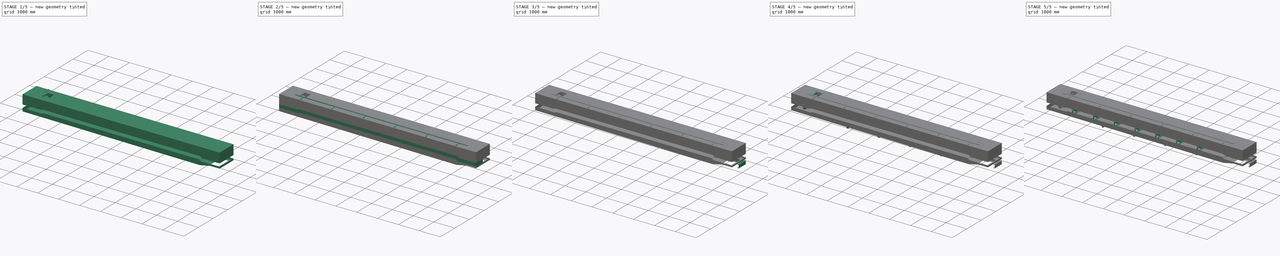
[diagram: build sequence overview — one tinted view per stage of 5, left to right]
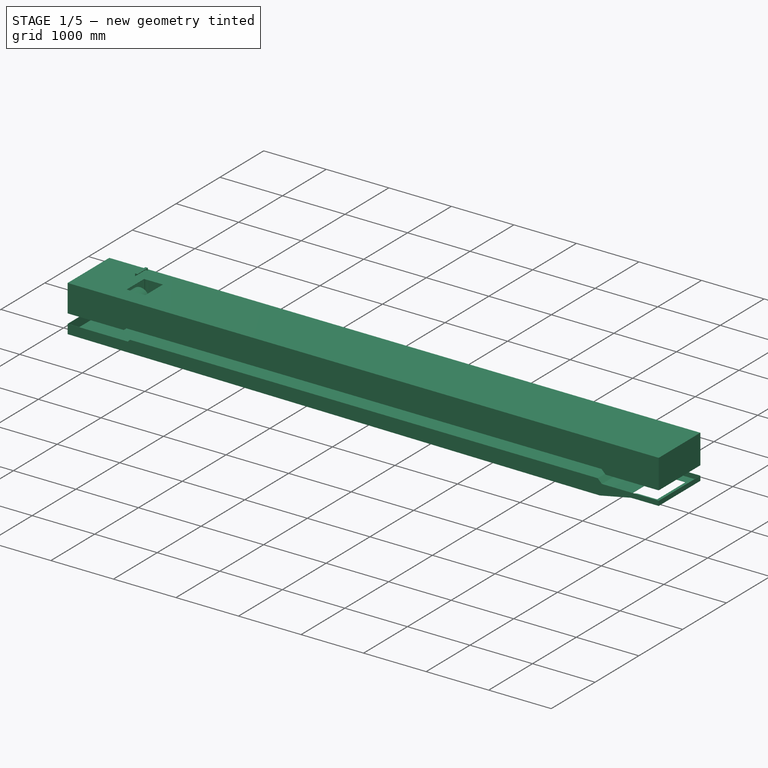
[diagram: stage 1 of 5 — iso view after this stage's code; geometry added in this stage tinted green]
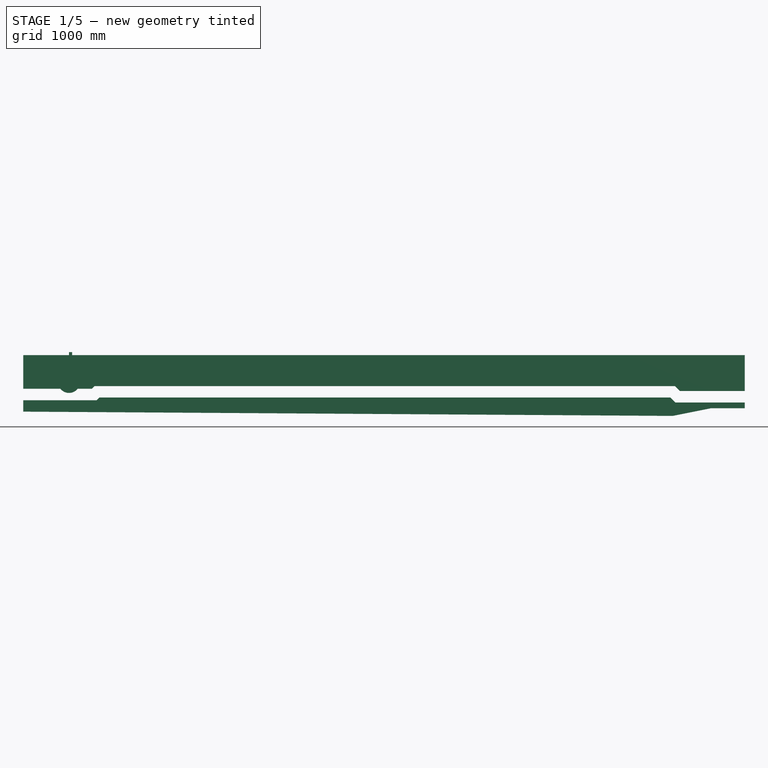
[diagram: stage 1 of 5 — front view after this stage's code; geometry added in this stage tinted green]
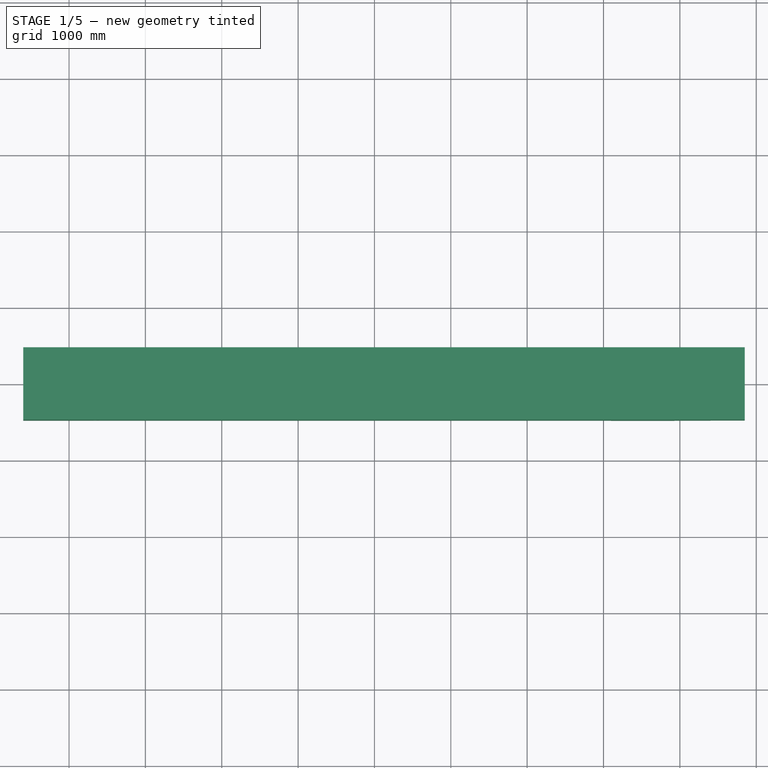
[diagram: stage 1 of 5 — top view after this stage's code; geometry added in this stage tinted green]
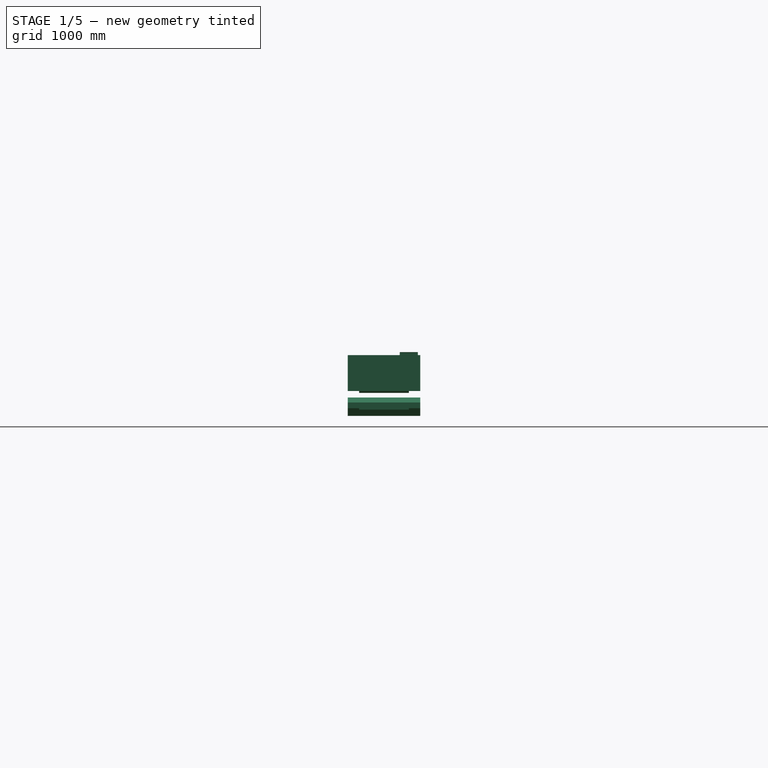
[diagram: stage 1 of 5 — right view after this stage's code; geometry added in this stage tinted green]
FCSTD DOCUMENT  (FreeCAD 1.0R39319 (Git))
Label: BeltCv_Assy_m
License: All rights reserved
LicenseURL: https://en.wikipedia.org/wiki/All_rights_reserved
objects: Sketcher::SketchObject×43, Part::FeaturePython×28, App::Part×28, Part::Extrusion×19, PartDesign::Pad×13, Part::MultiFuse×11, Spreadsheet::Sheet×9, PartDesign::Body×9, Part::Cut×8, Part::Mirroring×6, PartDesign::Pocket×6, Part::Feature×5, Part::Sweep×3, PartDesign::LinearPattern×3, PartDesign::Mirrored×2, Part::Compound×1, PartDesign::Chamfer×1
note: 245 computed .brp shape members not serialized (recipe doc carries the construction recipe); baked Part::Feature solids carry a one-line shape summary decoded from their .brp

FEATURE [App::Part] Part002  label="Frame"
  Group = -> [Part012,Part019,Sketch013,Sketch011,Sketch012,Sketch014,Sweep001,ChannelSteel001,Fusion001,Fusion,Fusion003,Fusion004,Fusion002,Extrude006,Extrude004,Extrude005,Extrude007,Extrude003,ChannelSteel,ChannelSteel002,Mirror]
  JPN = 本体
  Origin = -> Origin007
  Standard = B=600,L=8250
  count = 1
  g0 = 7.85
  mass = 243.97
  material = SS41
FEATURE [Spreadsheet::Sheet] Spreadsheet005  label="shtRecep"
  cells = C1='tailPulleyHIght Ht; D1='Inclination k(degree); E1='Array_n; F1='BeltWidth B0; G1='h1; H1='h2; I1='post_x; J1='pst_c; A2='CenterDistance C0; B2(C0)==<<shtFrame>>.C0; C2(Ht)==<<shtFrame>>.Ht; D2(k)==<<shtFrame>>.k; E2(n0)==C0 / 2500; F2=500; G2(h1)=25; H2(h2)=27; I2(post_x)=1900; J2(post_c)=2; A3='BeltWidth B0; B3(B0)=400; C3=400; D3=450; E3=500; F3=600; G3=700; H3=750; I3=800; J3=900; K3=1000; A4='Belt b1; B4(b1)=145; C4=145; D4=165; E4=180; F4=210; G4=250; H4=265; I4=280; J4=315; K4=345; A5='Belt b2; B5(b2)=127.5; C5==(C3 - C4) / 2; D5==(D3 - D4) / 2; E5==(E3 - E4) / 2; F5==(F3 - F4) / 2; G5==(G3 - G4) / 2; H5==(H3 - H4) / 2; I5==(I3 - I4) / 2; J5==(J3 - J4) / 2; K5==(K3 - K4) / 2; A6='BeltThickness t0; B6(t0)=10; C6=10; D6=10; E6=10; F6=10; G6=10; H6=10; I6=10; J6=10; K6=10; A7='HeadPullyDia D0; B7(D0)=290; C7=300; D7=300; E7=360; F7=360; G7=360; H7=460; I7=460; J7=520; K7=520; A8='TailPullyDia d1; B8(d1)=300; C8=260; D8=260; E8=300; F8=300; G8=300; H8=390; I8=390; J8=440; K8=440; A9='SnapPullyDia d2; B9(d2)=200; C9=200; D9=200; E9=200; F9=200; G9=200; H9=200; I9=200; J9=200; K9=200; A10='SnapPully Ls; B10(Ls)=500; C10=400; D10=400; E10=400; F10=500; G10=500; H10=500; I10=500; J10=500; K10=500; A11='SnapPully h0; B11(h0)=180; C11=180; D11=180; E11=160; F11=180; G11=180; H11=180; I11=180; J11=180; K11=180; A12='hontaihaba W; B12(W0)==<<shtFrame>>.W0; C12=710; D12=760; E12=810; F12=910; G12=910; H12=910; I12=910; J12=910; K12=910; A13='hontai _h; B13=103.5; C13=103.5; D13=103.5; E13=103.5; F13=103.5; G13=103.5; H13=103.5; I13=103.5; J13=103.5; K13=103.5; A14='hontai_z; B14=16; C14=16; D14=16; E14=16; F14=16; G14=16; H14=16; I14=16; J14=16; K14=16; A15='takeup_x; B15=-403.47; C15=-403.47; D15=-403.47; E15=-403.47; F15=-403.47; G15=-403.47; H15=-403.47; I15=-403.47; J15=-403.47; K15=-403.47; A16='takeup_y; B16=-362.8; C16=-362.8; D16=-362.8; E16=-362.8; F16=-410; G16=-410; H16=-410; I16=-410; J16=-410; K16=-410; A17='takeup_z; B17=-87; C17=-87; D17=-87; E17=-87; F17=-57; G17=-57; H17=-57; I17=-57; J17=-57; K17=-57; A18='carrierPitch  cp; B18=1000; A19='returnPitch rp; B19=1500; A20='outletL; B20(outletL)=50; A21='outletK; B21(outletK)=0; A22='insertX; B22(insertX)=300; A23='insertK; B23(insertK)=0
FEATURE [Sketcher::SketchObject] Sketch023
  ArcFitTolerance = 0
  FullyConstrained = true
  MakeInternals = false
  Placement = pos=(0,0,0) rot=(1,0,0;1.5708rad)
  expr: Constraints[27] = Spreadsheet005.C0 + 600
  expr: Constraints[30] = <<shtFrame>>.h1
  expr: Constraints[31] = <<shtFrame>>.h2
  sketch-geometry (11):
    g0: LineSegment StartX=-600 StartY=-239 StartZ=0 EndX=362 EndY=-239 EndZ=0
    g1: LineSegment StartX=362 StartY=-239 StartZ=0 EndX=397 EndY=-204 EndZ=0
    g2: LineSegment StartX=397 StartY=-204 StartZ=0 EndX=7875 EndY=-204 EndZ=0
    g3: LineSegment StartX=7875 StartY=-204 StartZ=0 EndX=7940 EndY=-269 EndZ=0
    g4: LineSegment StartX=7940 StartY=-269 StartZ=0 EndX=8850 EndY=-269 EndZ=0
    g5: LineSegment StartX=8410 StartY=-344 StartZ=0 EndX=7910 EndY=-444 EndZ=0
    g6: LineSegment StartX=7910 StartY=-444 StartZ=0 EndX=7760 EndY=-444 EndZ=0
    g7: LineSegment StartX=7760 StartY=-444 StartZ=0 EndX=-600 EndY=-389 EndZ=0
    g8: LineSegment StartX=-600 StartY=-389 StartZ=0 EndX=-600 EndY=-239 EndZ=0
    g9: LineSegment StartX=8410 StartY=-344 StartZ=0 EndX=8850 EndY=-344 EndZ=0
    g10: LineSegment StartX=8850 StartY=-344 StartZ=0 EndX=8850 EndY=-269 EndZ=0
  constraints (33):
    c: Horizontal(g0)
    c: Coincident(g0,g1)
    c: Coincident(g1,g2)
    c: Horizontal(g2)
    c: Coincident(g2,g3)
    c: Coincident(g3,g4)
    c: Horizontal(g4)
    c: Coincident(g5,g6)
    c: Horizontal(g6)
    c: Coincident(g6,g7)
    c: Coincident(g7,g8)
    c: Coincident(g8,g0)
    c: Vertical(g8)
    c: DistanceY(g8,g8) = 150
    c: DistanceY(g0,g-1) = 239
    c: Angle(g1,g0) = 2.35619
    c: Angle(g4,g3) = 2.35619
    c: DistanceY(g5,g3) = 75
    c: DistanceX(g6,g6) = 150
    c: DistanceX(g5,g5) = 500
    c: DistanceY(g5,g5) = 100
    c: Horizontal(g9)
    c: Coincident(g10,g9)
    c: Coincident(g10,g4)
    c: Vertical(g10)
    c: Coincident(g9,g5)
    c: DistanceX(g5,g9) = 440
    c: DistanceX(g-2,g9) = 8850
    c: DistanceX(g-2,g7) = -600
    c: DistanceX(g-2,g0) = 362
    c: DistanceY(g1,g1) = 35
    c: DistanceY(g3,g3) = 65
    c: DistanceX(g4,g4) = 910
FEATURE [Part::Extrusion] Extrude015
  Base = -> Sketch023
  Dir = (0,-1,2e-16)
  DirMode = 2
  FaceMakerClass = Part::FaceMakerBullseye
  FaceMakerMode = 3
  LengthFwd = 950
  LengthRev = 0
  Solid = true
  Symmetric = true
  expr: LengthFwd = <<shtRecep>>.W0
FEATURE [Sketcher::SketchObject] Sketch039
  ArcFitTolerance = 0
  FullyConstrained = true
  MakeInternals = false
  MapMode = 5
  Placement = pos=(371.335,-4.166e-13,0) rot=(0,-1,0;0rad)
  expr: Constraints[10] = <<shtFrame>>.C0 + 250
  expr: Constraints[9] = <<shtFrame>>.B0 + 50
  sketch-geometry (4):
    g0: LineSegment StartX=8100 StartY=-325 StartZ=0 EndX=8500 EndY=-325 EndZ=0
    g1: LineSegment StartX=8500 StartY=-325 StartZ=0 EndX=8500 EndY=325 EndZ=0
    g2: LineSegment StartX=8500 StartY=325 StartZ=0 EndX=8100 EndY=325 EndZ=0
    g3: LineSegment StartX=8100 StartY=325 StartZ=0 EndX=8100 EndY=-325 EndZ=0
  constraints (11):
    c: Coincident(g0,g1)
    c: Vertical(g3)
    c: DistanceX(g0,g0) = 400
    c: Coincident(g0,g3)
    c: Coincident(g2,g1)
    c: Coincident(g3,g2)
    c: Horizontal(g2)
    c: Horizontal(g0)
    c: Symmetric(g1,g0,g-1)
    c: DistanceY(g3,g3) = 650
    c: DistanceX(g-1,g1) = 8500
FEATURE [Sketcher::SketchObject] Sketch040
  ArcFitTolerance = 0
  FullyConstrained = true
  MakeInternals = false
  Placement = pos=(0,0,0) rot=(1,0,0;1.5708rad)
  expr: Constraints[26] = Spreadsheet005.C0 + 597
  expr: Constraints[29] = <<shtFrame>>.h2
  expr: Constraints[30] = <<shtFrame>>.h1
  sketch-geometry (11):
    g0: LineSegment StartX=-597 StartY=-242 StartZ=0 EndX=362 EndY=-242 EndZ=0
    g1: LineSegment StartX=362 StartY=-242 StartZ=0 EndX=397 EndY=-207 EndZ=0
    g2: LineSegment StartX=397 StartY=-207 StartZ=0 EndX=7872 EndY=-207 EndZ=0
    g3: LineSegment StartX=7872 StartY=-207 StartZ=0 EndX=7937 EndY=-272 EndZ=0
    g4: LineSegment StartX=7937 StartY=-272 StartZ=0 EndX=8847 EndY=-272 EndZ=0
    g5: LineSegment StartX=8410 StartY=-344 StartZ=0 EndX=7910 EndY=-444 EndZ=0
    g6: LineSegment StartX=7910 StartY=-444 StartZ=0 EndX=7760 EndY=-444 EndZ=0
    g7: LineSegment StartX=7760 StartY=-444 StartZ=0 EndX=-597 EndY=-389 EndZ=0
    g8: LineSegment StartX=-597 StartY=-389 StartZ=0 EndX=-597 EndY=-242 EndZ=0
    g9: LineSegment StartX=8410 StartY=-344 StartZ=0 EndX=8847 EndY=-344 EndZ=0
    g10: LineSegment StartX=8847 StartY=-344 StartZ=0 EndX=8847 EndY=-272 EndZ=0
  constraints (33):
    c: Horizontal(g0)
    c: Coincident(g0,g1)
    c: Coincident(g1,g2)
    c: Horizontal(g2)
    c: Coincident(g2,g3)
    c: Coincident(g3,g4)
    c: Horizontal(g4)
    c: Coincident(g5,g6)
    c: Horizontal(g6)
    c: Coincident(g6,g7)
    c: Coincident(g7,g8)
    c: Coincident(g8,g0)
    c: Vertical(g8)
    c: DistanceY(g8,g8) = 147
    c: DistanceY(g0,g-1) = 242
    c: Angle(g1,g0) = 2.35619
    c: Angle(g4,g3) = 2.35619
    c: DistanceX(g6,g6) = 150
    c: DistanceX(g5,g5) = 500
    c: DistanceY(g5,g5) = 100
    c: Horizontal(g9)
    c: Coincident(g10,g9)
    c: Coincident(g10,g4)
    c: Vertical(g10)
    c: Coincident(g9,g5)
    c: DistanceX(g5,g9) = 437
    c: DistanceX(g-2,g9) = 8847
    c: DistanceX(g-2,g7) = -597
    c: DistanceX(g-2,g0) = 362
    c: DistanceY(g3,g3) = 65
    c: DistanceY(g1,g1) = 35
    c: DistanceY(g10,g10) = 72
    c: DistanceX(g4,g4) = 910
FEATURE [Part::Extrusion] Extrude032
  Base = -> Sketch040
  Dir = (0,-1,2e-16)
  DirMode = 2
  FaceMakerClass = Part::FaceMakerBullseye
  FaceMakerMode = 3
  LengthFwd = 944
  LengthRev = 0
  Placement = pos=(0,0,3) rot=(0,0,1;0rad)
  Solid = true
  Symmetric = true
  expr: LengthFwd = <<shtRecep>>.W0 - 6
FEATURE [Part::Cut] Cut002
  Base = -> Extrude015
  Refine = true
  Tool = -> Extrude032
FEATURE [Sketcher::SketchObject] Sketch059
  ArcFitTolerance = 0
  FullyConstrained = true
  MakeInternals = false
  Placement = pos=(0,0,0) rot=(0.57735,0.57735,0.57735;2.0944rad)
  expr: Constraints[4] = (Spreadsheet007.B0 - 200) / 2 + 6
  expr: Constraints[6] = <<shtFrame>>.hsk2
  sketch-geometry (2):
    g0: LineSegment StartX=206 StartY=390 StartZ=0 EndX=443.62 EndY=390 EndZ=0
    g1: LineSegment StartX=443.62 StartY=390 StartZ=0 EndX=443.62 EndY=0 EndZ=0
  constraints (7):
    c: Horizontal(g0)
    c: Vertical(g1)
    c: Coincident(g1,g0)
    c: DistanceX(g0,g0) = 237.62
    c: DistanceX(g-1,g0) = 206
    c: PointOnObject(g1,g-1)
    c: DistanceY(g1,g1) = 390
FEATURE [Part::FeaturePython] AngleSteel001  # WARN: FeaturePython — macro-defined, semantics opaque (R4)
  A = 40
  B = 40
  L = 1000
  Placement = pos=(0,300,390) rot=(1,0,0;3.14159rad)
  Solid = false
  g0 = 7.85
  mass = 0
  size = 5
  standard = SS_Equal
  t = 5
  expr: .Placement.Base.y = <<shtFrame>>.B0 / 2
  expr: .Placement.Base.z = <<shtFrame>>.hsk2
FEATURE [Part::Sweep] Sweep002
  Frenet = false
  Sections = -> [AngleSteel001]
  Solid = true
  Spine = -> Sketch059 [Edge1,Edge2]
  Transition = 1
FEATURE [App::Part] Part011  label="Skirt"
  Group = -> [Part008,Mirror005,Spreadsheet007]
  Origin = -> Origin015
  Placement = pos=(0,0,-354) rot=(0,1,0;0rad)
  count = 1
  mass = 86.07
  expr: .Placement.Base.z = -(1000 - <<shtFrame>>.Ht) - (35 - <<shtFrame>>.h1) - 54
  expr: .Placement.Rotation.Angle = -<<shtFrame>>.k
FEATURE [Part::Extrusion] Extrude033
  Base = -> Sketch039
  Dir = (0,0,1)
  DirMode = 2
  FaceMakerClass = Part::FaceMakerBullseye
  FaceMakerMode = 3
  LengthFwd = 50
  LengthRev = 0
  Placement = pos=(-152,0,-350) rot=(0,0,1;0rad)
  Solid = true
  Symmetric = true
FEATURE [Part::Cut] Cut004
  Base = -> Cut002
  Refine = true
  Tool = -> Extrude033
FEATURE [App::Part] Part014  label="waterReceptacle"
  Group = -> [Single_flange_straight_pipe,Fusion009,Single_flange_straight_pipe001,Sketch024,Part030,Spreadsheet005,Cut002,Sketch023,Sketch040,Sketch039,Extrude033,Extrude015,Extrude032,Cut004]
  Origin = -> Origin018
  Placement = pos=(0,0,-300) rot=(0,1,0;0rad)
  count = 1
  mass = 312.88
  expr: .Placement.Base.z = -(1000 - <<shtFrame>>.Ht)
  expr: .Placement.Rotation.Angle = -<<shtFrame>>.k
FEATURE [Spreadsheet::Sheet] Spreadsheet008  label="shtCover"
  cells = C1='tailPulleyHIght Ht; D1='Inclination k(degree); E1='Array_n; F1='BeltWidth B0; G1='h1; H1='h2; I1='post_x; J1='pst_c; A2='CenterDistance C0; B2(C0)==<<shtFrame>>.C0; C2(Ht)=1000; D2(k)==<<shtFrame>>.k; E2(n0)==C0 / 2500; F2=500; G2(h1)=50; H2(h2)=73; I2(post_x)=2175; J2(post_c)=3; A3='BeltWidth B0; B3(B0)==<<shtFrame>>.B0; C3=400; D3=450; E3=500; F3=600; G3=700; H3=750; I3=800; J3=900; K3=1000; A4='Belt b1; B4(b1)=265; C4=145; D4=165; E4=180; F4=210; G4=250; H4=265; I4=280; J4=315; K4=345; A5='Belt b2; B5(b2)=242.5; C5==(C3 - C4) / 2; D5==(D3 - D4) / 2; E5==(E3 - E4) / 2; F5==(F3 - F4) / 2; G5==(G3 - G4) / 2; H5==(H3 - H4) / 2; I5==(I3 - I4) / 2; J5==(J3 - J4) / 2; K5==(K3 - K4) / 2; A6='BeltThickness t0; B6(t0)=10; C6=10; D6=10; E6=10; F6=10; G6=10; H6=10; I6=10; J6=10; K6=10; A7='HeadPullyDia D0; B7(D0)=460; C7=300; D7=300; E7=360; F7=360; G7=360; H7=460; I7=460; J7=520; K7=520; A8='TailPullyDia d1; B8(d1)=390; C8=260; D8=260; E8=300; F8=300; G8=300; H8=390; I8=390; J8=440; K8=440; A9='SnapPullyDia d2; B9(d2)=200; C9=200; D9=200; E9=200; F9=200; G9=200; H9=200; I9=200; J9=200; K9=200; A10='SnapPully Ls; B10(Ls)=500; C10=400; D10=400; E10=400; F10=500; G10=500; H10=500; I10=500; J10=500; K10=500; A11='SnapPully h0; B11(h0)=180; C11=180; D11=180; E11=160; F11=180; G11=180; H11=180; I11=180; J11=180; K11=180; A12='hontaihaba W; B12(W0)==<<shtFrame>>.W0; C12=710; D12=760; E12=810; F12=910; G12=910; H12=910; I12=910; J12=910; K12=910; A13='hontai _h; B13=103.5; C13=103.5; D13=103.5; E13=103.5; F13=103.5; G13=103.5; H13=103.5; I13=103.5; J13=103.5; K13=103.5; A14='hontai_z; B14=16; C14=16; D14=16; E14=16; F14=16; G14=16; H14=16; I14=16; J14=16; K14=16; A15='takeup_x; B15=-403.47; C15=-403.47; D15=-403.47; E15=-403.47; F15=-403.47; G15=-403.47; H15=-403.47; I15=-403.47; J15=-403.47; K15=-403.47; A16='takeup_y; B16=-362.8; C16=-362.8; D16=-362.8; E16=-362.8; F16=-410; G16=-410; H16=-410; I16=-410; J16=-410; K16=-410; A17='takeup_z; B17=-87; C17=-87; D17=-87; E17=-87; F17=-57; G17=-57; H17=-57; I17=-57; J17=-57; K17=-57; A18='carrierPitch  cp; B18=1000; A19='returnPitch rp; B19=1500; A20='outletL; B20(outletL)=50; A21='outletK; B21(outletK)=0; A22='insertX; B22(insertX)=300; A23='insertK; B23(insertK)=0
FEATURE [Sketcher::SketchObject] Sketch020
  ArcFitTolerance = 0
  FullyConstrained = true
  MakeInternals = false
  Placement = pos=(0,0,0) rot=(1,0,0;1.5708rad)
  expr: .Constraints.hv = <<shtFrame>>.hsk2 + <<shtFrame>>.h1 + 15
  expr: Constraints[18] = <<shtFrame>>.h1
  expr: Constraints[21] = Spreadsheet008.C0 + 1200
  expr: Constraints[22] = <<shtFrame>>.h2
  sketch-geometry (8):
    g0: LineSegment StartX=-600 StartY=-89 StartZ=0 EndX=-600 EndY=351 EndZ=0
    g1: LineSegment StartX=-600 StartY=351 StartZ=0 EndX=8850 EndY=351 EndZ=0
    g2: LineSegment StartX=8850 StartY=351 StartZ=0 EndX=8850 EndY=-119 EndZ=0
    g3: LineSegment StartX=8850 StartY=-119 StartZ=0 EndX=8000 EndY=-119 EndZ=0
    g4: LineSegment StartX=8000 StartY=-119 StartZ=0 EndX=7935 EndY=-54 EndZ=0
    g5: LineSegment StartX=7935 StartY=-54 StartZ=0 EndX=335 EndY=-54 EndZ=0
    g6: LineSegment StartX=335 StartY=-54 StartZ=0 EndX=300 EndY=-89 EndZ=0
    g7: LineSegment StartX=300 StartY=-89 StartZ=0 EndX=-600 EndY=-89 EndZ=0
  constraints (24):
    c: Vertical(g0)
    c: Coincident(g0,g1)
    c: Horizontal(g1)
    c: Coincident(g1,g2)
    c: Vertical(g2)
    c: Coincident(g2,g3)
    c: Horizontal(g3)
    c: Coincident(g3,g4)
    c: Coincident(g4,g5)
    c: Horizontal(g5)
    c: Coincident(g5,g6)
    c: Coincident(g6,g7)
    c: Coincident(g7,g0)
    c: Horizontal(g7)
    c: Distance(g-1,g0) = 600
    c: Distance(g-1,g7) = 89
    c: DistanceX(g-1,g6) = 300
    c: Angle(g6,g5) = 2.35619
    c: DistanceY(g6,g5) = 35
    c: Angle(g3,g4) = 2.35619
    c: DistanceY(g0,g0) = 440  'hv'
    c: DistanceX(g1,g1) = 9450
    c: DistanceY(g4,g4) = 65
    c: DistanceX(g3,g3) = 850
FEATURE [Part::Extrusion] Extrude012
  Base = -> Sketch020
  Dir = (0,-1,2e-16)
  DirMode = 2
  FaceMakerClass = Part::FaceMakerBullseye
  FaceMakerMode = 3
  LengthFwd = 950
  LengthRev = 0
  Solid = true
  Symmetric = true
  expr: LengthFwd = <<shtCover>>.W0
FEATURE [Sketcher::SketchObject] Sketch021
  ArcFitTolerance = 0
  FullyConstrained = true
  MakeInternals = false
  MapMode = 5
  Placement = pos=(0,9.04e-14,411) rot=(0,0,1;0rad)
  expr: Constraints[10] = .Constraints.w / 2
  sketch-geometry (4):
    g0: LineSegment StartX=400 StartY=-200 StartZ=0 EndX=800 EndY=-200 EndZ=0
    g1: LineSegment StartX=800 StartY=-200 StartZ=0 EndX=800 EndY=200 EndZ=0
    g2: LineSegment StartX=800 StartY=200 StartZ=0 EndX=400 EndY=200 EndZ=0
    g3: LineSegment StartX=400 StartY=200 StartZ=0 EndX=400 EndY=-200 EndZ=0
  constraints (12):
    c: Coincident(g0,g1)
    c: Coincident(g1,g2)
    c: Coincident(g2,g3)
    c: Coincident(g3,g0)
    c: Horizontal(g0)
    c: Horizontal(g2)
    c: Vertical(g1)
    c: Vertical(g3)
    c: DistanceX(g2,g2) = 400
    c: DistanceY(g3,g3) = 400  'w'
    c: DistanceY(g-1,g2) = 200
    c: DistanceX(g-1,g2) = 400
FEATURE [Sketcher::SketchObject] Sketch060
  ArcFitTolerance = 0
  FullyConstrained = true
  MakeInternals = false
  Placement = pos=(0,0,0) rot=(1,0,0;1.5708rad)
  expr: Constraints[18] = <<shtFrame>>.h1
  expr: Constraints[20] = <<Sketch020>>.Constraints.hv - 3 mm
  expr: Constraints[21] = Spreadsheet008.C0 + 1194
  expr: Constraints[22] = <<shtFrame>>.h2
  sketch-geometry (8):
    g0: LineSegment StartX=-597 StartY=-89 StartZ=0 EndX=-597 EndY=348 EndZ=0
    g1: LineSegment StartX=-597 StartY=348 StartZ=0 EndX=8847 EndY=348 EndZ=0
    g2: LineSegment StartX=8847 StartY=348 StartZ=0 EndX=8847 EndY=-119 EndZ=0
    g3: LineSegment StartX=8847 StartY=-119 StartZ=0 EndX=8000 EndY=-119 EndZ=0
    g4: LineSegment StartX=8000 StartY=-119 StartZ=0 EndX=7935 EndY=-54 EndZ=0
    g5: LineSegment StartX=7935 StartY=-54 StartZ=0 EndX=335 EndY=-54 EndZ=0
    g6: LineSegment StartX=335 StartY=-54 StartZ=0 EndX=300 EndY=-89 EndZ=0
    g7: LineSegment StartX=300 StartY=-89 StartZ=0 EndX=-597 EndY=-89 EndZ=0
  constraints (24):
    c: Vertical(g0)
    c: Coincident(g0,g1)
    c: Horizontal(g1)
    c: Coincident(g1,g2)
    c: Vertical(g2)
    c: Coincident(g2,g3)
    c: Horizontal(g3)
    c: Coincident(g3,g4)
    c: Coincident(g4,g5)
    c: Horizontal(g5)
    c: Coincident(g5,g6)
    c: Coincident(g6,g7)
    c: Coincident(g7,g0)
    c: Horizontal(g7)
    c: Distance(g-1,g0) = 597
    c: Distance(g-1,g7) = 89
    c: DistanceX(g-1,g6) = 300
    c: Angle(g6,g5) = 2.35619
    c: DistanceY(g6,g5) = 35
    c: Angle(g3,g4) = 2.35619
    c: DistanceY(g0,g0) = 437
    c: DistanceX(g1,g1) = 9444
    c: DistanceY(g4,g4) = 65
    c: DistanceX(g3,g3) = 847
FEATURE [Part::Extrusion] Extrude034
  Base = -> Sketch060
  Dir = (0,-1,2e-16)
  DirMode = 2
  FaceMakerClass = Part::FaceMakerBullseye
  FaceMakerMode = 3
  LengthFwd = 944
  LengthRev = 0
  Placement = pos=(0,0,-3) rot=(0,0,1;0rad)
  Solid = true
  Symmetric = true
  expr: LengthFwd = <<shtCover>>.W0 - 6
FEATURE [Part::Cut] Cut005
  Base = -> Extrude012
  Refine = true
  Tool = -> Extrude034
FEATURE [Sketcher::SketchObject] Sketch051
  ArcFitTolerance = 1e-06
  AttachmentSupport = -> [XZ_Plane038]
  FullyConstrained = true
  MakeInternals = false
  MapMode = 5
  Placement = pos=(0,0,0) rot=(1,0,0;1.5708rad)
  expr: Constraints[11] = Spreadsheet009.h0 + 10
  expr: Constraints[8] = Spreadsheet009.w0
  expr: Constraints[9] = Spreadsheet009.sita0
  sketch-geometry (5):
    g0: LineSegment StartX=-150 StartY=0 StartZ=0 EndX=150 EndY=0 EndZ=0
    g1: LineSegment StartX=150 StartY=0 StartZ=0 EndX=150 EndY=60 EndZ=0
    g2: LineSegment StartX=150 StartY=60 StartZ=0 EndX=-150 EndY=60 EndZ=0
    g3: LineSegment StartX=-150 StartY=60 StartZ=0 EndX=-150 EndY=0 EndZ=0
    g4: GeomPoint X=-1.15e-14 Y=60 Z=0
  constraints (12):
    c: PointOnObject(g0,g-1)
    c: Coincident(g0,g1)
    c: Vertical(g1)
    c: Coincident(g1,g2)
    c: Coincident(g2,g3)
    c: Coincident(g3,g0)
    c: Vertical(g3)
    c: Symmetric(g0,g0,g-2)
    c: DistanceX(g0,g0) = 300
    c: Angle(g0,g2) = 0
    c: Symmetric(g2,g2,g4)
    c: DistanceY(g-1,g4) = 60
FEATURE [PartDesign::Pad] Pad010
  Direction = (0,-1,2e-16)
  Length = 400
  Length2 = 10
  Midplane = true
  Placement = pos=(0,0,0) rot=(1,0,0;1.5708rad)
  Profile = -> Sketch051
  ReferenceAxis = -> Sketch051 [N_Axis]
  Refine = true
  Suppressed = false
  Type = 0
  expr: Length = Spreadsheet009.l0
FEATURE [PartDesign::Body] Body007  label="Body008"
  AllowCompound = false
  Group = -> [Sketch051,Pad010]
  Origin = -> Origin038
  Tip = -> Pad010
FEATURE [Sketcher::SketchObject] Sketch052
  ArcFitTolerance = 1e-06
  AttachmentSupport = -> [XZ_Plane039]
  FullyConstrained = true
  MakeInternals = false
  MapMode = 5
  Placement = pos=(0,0,0) rot=(1,0,0;1.5708rad)
  expr: .Constraints.sita = Spreadsheet009.sita0
  expr: Constraints[11] = Spreadsheet009.h0
  expr: Constraints[8] = Spreadsheet009.w0 + Spreadsheet009.t0 * 2
  sketch-geometry (5):
    g0: LineSegment StartX=-156 StartY=0 StartZ=0 EndX=156 EndY=0 EndZ=0
    g1: LineSegment StartX=156 StartY=0 StartZ=0 EndX=156 EndY=50 EndZ=0
    g2: LineSegment StartX=156 StartY=50 StartZ=0 EndX=-156 EndY=50 EndZ=0
    g3: LineSegment StartX=-156 StartY=50 StartZ=0 EndX=-156 EndY=0 EndZ=0
    g4: GeomPoint X=-6.2e-15 Y=50 Z=0
  constraints (12):
    c: PointOnObject(g0,g-1)
    c: Coincident(g0,g1)
    c: Vertical(g1)
    c: Coincident(g1,g2)
    c: Coincident(g2,g3)
    c: Coincident(g3,g0)
    c: Vertical(g3)
    c: Symmetric(g0,g0,g-2)
    c: DistanceX(g0,g0) = 312
    c: Angle(g0,g2) = 0  'sita'
    c: Symmetric(g2,g2,g4)
    c: DistanceY(g-1,g4) = 50
FEATURE [PartDesign::Pad] Pad011
  Direction = (0,-1,2e-16)
  Length = 412
  Length2 = 10
  Midplane = true
  Placement = pos=(0,0,0) rot=(1,0,0;1.5708rad)
  Profile = -> Sketch052
  ReferenceAxis = -> Sketch052 [N_Axis]
  Refine = true
  Suppressed = false
  Type = 0
  expr: Length = Spreadsheet009.l0 + Spreadsheet009.t0 * 2
FEATURE [Sketcher::SketchObject] Sketch053
  ArcFitTolerance = 1e-06
  AttachmentSupport = -> [Pad011]
  FullyConstrained = true
  MakeInternals = false
  MapMode = 5
  Placement = pos=(0,1.11e-14,50) rot=(0,0,1;3.14159rad)
  expr: .AttachmentOffset.Base.x = -<<shtInlet>>.h0 * sin(<<shtInlet>>.sita0) * cos(<<shtInlet>>.sita0)
  expr: Constraints[10] = Spreadsheet009.w0 + Spreadsheet009.t0 * 2 + Spreadsheet009.b0 * 2
  expr: Constraints[11] = Spreadsheet009.l0 + Spreadsheet009.t0 * 2 + Spreadsheet009.b0 * 2
  sketch-geometry (5):
    g0: LineSegment StartX=-206 StartY=-256 StartZ=0 EndX=206 EndY=-256 EndZ=0
    g1: LineSegment StartX=206 StartY=-256 StartZ=0 EndX=206 EndY=256 EndZ=0
    g2: LineSegment StartX=206 StartY=256 StartZ=0 EndX=-206 EndY=256 EndZ=0
    g3: LineSegment StartX=-206 StartY=256 StartZ=0 EndX=-206 EndY=-256 EndZ=0
    g4: GeomPoint [constr] X=0 Y=0 Z=0
  constraints (12):
    c: Coincident(g0,g1)
    c: Coincident(g1,g2)
    c: Coincident(g2,g3)
    c: Coincident(g3,g0)
    c: Horizontal(g0)
    c: Horizontal(g2)
    c: Vertical(g1)
    c: Vertical(g3)
    c: Symmetric(g2,g0,g4)
    c: Coincident(g4,g-1)
    c: DistanceX(g2,g2) = 412
    c: DistanceY(g3,g3) = 512
FEATURE [PartDesign::Pad] Pad012
  BaseFeature = -> Pad011
  Direction = (0,0,1)
  Length = 6
  Length2 = 10
  Placement = pos=(0,0,0) rot=(1,0,0;1.5708rad)
  Profile = -> Sketch053
  ReferenceAxis = -> Sketch053 [N_Axis]
  Refine = true
  Suppressed = false
  Type = 0
FEATURE [PartDesign::Body] Body008  label="Body009"
  AllowCompound = false
  Group = -> [Sketch052,Pad011,Sketch053,Pad012]
  Origin = -> Origin039
  Tip = -> Pad012
FEATURE [Part::Cut] Cut006
  Base = -> Body008
  Refine = true
  Tool = -> Body007
FEATURE [Spreadsheet::Sheet] Spreadsheet009  label="shtInlet"
  cells = A1='inlet; A2='w0; B2(w0)=300; A3='l0; B3(l0)==<<shtFrame>>.B0 - 200; A4='t0; B4(t0)=6; A5='h0; B5(h0)=50; A6='b0; B6(b0)=50; A7='sita0; B7(sita0)=0
FEATURE [App::Part] Part031  label="inlet"
  Group = -> [Spreadsheet009,Body007,Body008,Cut006]
  Origin = -> Origin040
  Placement = pos=(300,0,351) rot=(0,0,1;0rad)
  expr: .Placement.Base.z = <<Sketch020>>.Constraints.hv - 89 mm
FEATURE [Sketcher::SketchObject] Sketch061
  ArcFitTolerance = 1e-06
  AttachmentSupport = -> [Cut005]
  FullyConstrained = true
  MakeInternals = false
  MapMode = 5
  Placement = pos=(0,7.79e-14,351) rot=(0,0,1;0rad)
  expr: Constraints[10] = <<shtFrame>>.B0 - 200
  sketch-geometry (5):
    g0: LineSegment StartX=150 StartY=-200 StartZ=0 EndX=450 EndY=-200 EndZ=0
    g1: LineSegment StartX=450 StartY=-200 StartZ=0 EndX=450 EndY=200 EndZ=0
    g2: LineSegment StartX=450 StartY=200 StartZ=0 EndX=150 EndY=200 EndZ=0
    g3: LineSegment StartX=150 StartY=200 StartZ=0 EndX=150 EndY=-200 EndZ=0
    g4: GeomPoint [constr] X=300 Y=-2.3e-15 Z=0
  constraints (13):
    c: Coincident(g0,g1)
    c: Coincident(g1,g2)
    c: Coincident(g2,g3)
    c: Coincident(g3,g0)
    c: Horizontal(g0)
    c: Horizontal(g2)
    c: Vertical(g1)
    c: Vertical(g3)
    c: Symmetric(g2,g0,g4)
    c: DistanceX(g2,g2) = 300
    c: DistanceY(g3,g3) = 400
    c: PointOnObject(g4,g-1)
    c: DistanceX(g-1,g4) = 300
FEATURE [Part::Extrusion] Extrude035
  Base = -> Sketch061
  Dir = (0,0,1)
  DirMode = 2
  FaceMakerClass = Part::FaceMakerBullseye
  FaceMakerMode = 3
  LengthFwd = 50
  LengthRev = 0
  Reversed = true
  Solid = true
  Symmetric = true
FEATURE [Part::Cut] Cut007
  Base = -> Cut005
  Refine = true
  Tool = -> Extrude035
FEATURE [App::Part] Part013  label="Cover"
  Group = -> [Sketch021,Part031,Spreadsheet008,Cut005,Extrude012,Extrude034,Sketch060,Sketch020,Sketch061,Extrude035,Cut007]
  Origin = -> Origin017
  Placement = pos=(0,0,-300) rot=(0,1,0;0rad)
  count = 1
  mass = 626.6
  expr: .Placement.Base.z = -(1000 - <<shtFrame>>.Ht)
  expr: .Placement.Rotation.Angle = -<<shtFrame>>.k
FEATURE [Sketcher::SketchObject] Sketch062
  ArcFitTolerance = 0
  FullyConstrained = true
  MakeInternals = false
  sketch-geometry (10):
    g0: LineSegment StartX=-600 StartY=-625 StartZ=0 EndX=-600 EndY=625 EndZ=0
    g1: LineSegment StartX=-600 StartY=625 StartZ=0 EndX=600 EndY=625 EndZ=0
    g2: LineSegment StartX=600 StartY=625 StartZ=0 EndX=600 EndY=-625 EndZ=0
    g3: LineSegment StartX=600 StartY=-625 StartZ=0 EndX=-600 EndY=-625 EndZ=0
    g4: GeomPoint [constr] X=0 Y=0 Z=0
    g5: LineSegment StartX=-525 StartY=-550 StartZ=0 EndX=-525 EndY=550 EndZ=0
    g6: LineSegment StartX=-525 StartY=550 StartZ=0 EndX=525 EndY=550 EndZ=0
    g7: LineSegment StartX=525 StartY=550 StartZ=0 EndX=525 EndY=-550 EndZ=0
    g8: LineSegment StartX=525 StartY=-550 StartZ=0 EndX=-525 EndY=-550 EndZ=0
    g9: GeomPoint [constr] X=0 Y=0 Z=0
  constraints (24):
    c: Coincident(g0,g1)
    c: Coincident(g1,g2)
    c: Coincident(g2,g3)
    c: Coincident(g3,g0)
    c: Horizontal(g1)
    c: Horizontal(g3)
    c: Vertical(g0)
    c: Vertical(g2)
    c: Symmetric(g1,g0,g4)
    c: Coincident(g4,g-1)
    c: Distance(g0) = 1250
    c: Distance(g4,g0) = 600
    c: Coincident(g5,g6)
    c: Coincident(g6,g7)
    c: Coincident(g7,g8)
    c: Coincident(g8,g5)
    c: Horizontal(g6)
    c: Horizontal(g8)
    c: Vertical(g5)
    c: Vertical(g7)
    c: Symmetric(g6,g5,g9)
    c: Coincident(g9,g4)
    c: Distance(g5,g0) = 75
    c: Distance(g5,g1) = 75
FEATURE [Spreadsheet::Sheet] Spreadsheet010  label="Spreadsheet_takeup"
  cells = A1='beltWidth; B1='takeup d0; C1='d1=d0+10; D1='pulley D0; E1='pulley L0; F1='puller C0; G1='puller B0; H1='takeup Y; A2(W0)==<<shtFrame>>.B0; B2(d0)=20; C2(d1)==d0 + 10; D2(D0)=300; E2(L0)=650; F2(C0)=768; G2(B0)=50; H2(Y)=410; A3=400; B3=20; C3==d0 + 10; D3=300; E3=450; F3=568; G3=50; H3=310; A4=450; B4=20; C4==d0 + 10; D4=300; E4=500; F4=618; G4=50; H4=335; A5=500; B5=20; C5==d0 + 10; D5=300; E5=550; F5=668; G5=50; H5=360; A6=600; B6=20; C6==d0 + 10; D6=300; E6=650; F6=768; G6=50; H6=410; A7=700; B7=20; C7==d0 + 10; D7=300; E7=750; F7=868; G7=50; H7=460; A8=750; B8=20; C8==d0 + 10; D8=300; E8=800; F8=918; G8=50; H8=485; A9=800; B9=20; C9==d0 + 10; D9=300; E9=850; F9=968; G9=50; H9=510; A10=900; B10=20; C10==d0 + 10; D10=300; E10=950; F10=1068; G10=50; H10=560; A11=1000; B11=20; C11==d0 + 10; D11=300; E11=1050; F11=1168; G11=50; H11=610
FEATURE [Part::FeaturePython] Take_upPulley001  label="Take_upPulley"  # WARN: FeaturePython — macro-defined, semantics opaque (R4)
  BeltWidth = 3
  D = 288
  E = 0
  L = 650
  Placement = pos=(0,0,0) rot=(0,0,1;1.5708rad)
  d1 = 40
  d2 = 30
  d3 = 20
  expr: D = <<shtFrame>>.d1
  expr: L = <<Spreadsheet_takeup>>.W0 + 50
  expr: d1 = d2 + 10
  expr: d2 = d3 + 10
  expr: d3 = <<Spreadsheet_takeup>>.d0
FEATURE [Part::Feature] Part__Feature004  label="UCT204-Nipple001"
  Placement = pos=(402.082,85.3824,0) rot=(-0.519988,0.677661,-0.519988;4.33274rad)
  shape: bbox 18.99 x 12.27 x 15.73 mm, 44 faces (baked)
FEATURE [Part::Feature] Part__Feature005  label="UCT204-Housing003"
  Placement = pos=(435,77,0) rot=(0,0,1;0rad)
  shape: bbox 145.2 x 120 x 60 mm, 83 faces (baked)
FEATURE [Part::Feature] Part__Feature006  label="UCTL204-300-Frame001"
  Placement = pos=(285,77,0) rot=(0,0,1;0rad)
  shape: bbox 630 x 146 x 56.5 mm, 312 faces (baked)
FEATURE [App::Part] UCTL204J_300_001  label="UCTL204J-300-001"
  Group = -> [Part__Feature004,Part__Feature005,Part__Feature006]
  Origin = -> Origin045
FEATURE [App::Part] _______________________________20_v002  label="Take-Up_20 "
  Group = -> [UCTL204J_300_001]
  Origin = -> Origin046
  Placement = pos=(-435,410,-77) rot=(1,0,0;1.5708rad)
  expr: .Placement.Base.y = <<shtFrame>>.Y
FEATURE [Part::Feature] Part__Feature  label="UCP206FC002"
  Placement = pos=(-0.4,415,1.067e-13) rot=(1,0,0;1.5708rad)
  shape: bbox 165 x 70 x 92.1 mm, 127 faces (baked)
  expr: .Placement.Base.y = BendPulley001.L / 2 + 90
FEATURE [Part::FeaturePython] Clone005  label="UCP206FC003"  # Draft clone (typed FeaturePython)
  AttacherType = Attacher::AttachEngine3D
  Fuse = false
  Objects = -> [Part__Feature]
  Placement = pos=(-0.4,-415,1.067e-13) rot=(1,0,0;1.5708rad)
  Scale = (1,1,1)
  expr: .Placement.Base.y = -(BendPulley001.L / 2 + 90)
FEATURE [Part::FeaturePython] BendPulley001  # WARN: FeaturePython — macro-defined, semantics opaque (R4)
  BeltWidth = 3
  D = 200
  E = 0
  L = 650
  Placement = pos=(0,0,0) rot=(0,0,1;1.5708rad)
  d1 = 50
  d2 = 45
  d3 = 0
FEATURE [App::Part] Part032  label="BendPulleyAssy"
  Group = -> [Part__Feature,Clone005,BendPulley001]
  JPN = ベンドプーリ
  Origin = -> Origin047
  Placement = pos=(7650,0,-553) rot=(0,1,0;3.14159rad)
  count = 1
  g0 = 7.85
  mass = 42.6415
  expr: .Placement.Base.x = <<shtFrame>>.C0 - 600
  expr: .Placement.Base.z = -503 - (750 - <<shtFrame>>.Ht) + (<<shtFrame>>.C0 - 600) * tan(<<shtFrame>>.k)
  expr: .Placement.Rotation.Angle = 180 - <<shtFrame>>.k
FEATURE [Part::Mirroring] Mirror006  label="Take-Up_20  (mirrored)"
  Base = (-950,0,0)
  Normal = (0,-1,0)
  Source = -> _______________________________20_v002
FEATURE [App::Part] Part  label="takeUpAssy"
  Group = -> [Sketch062,Spreadsheet010,Take_upPulley001,_______________________________20_v002,Mirror006]
  JPN = テークアップアセンブリ
  Origin = -> Origin044
  Placement = pos=(0,0,-300) rot=(0,1,0;0rad)
  count = 1
  mass = 64.7933
  expr: .Placement.Base.z = -(1000 - <<shtFrame>>.Ht)
  expr: .Placement.Rotation.Angle = -<<shtFrame>>.k
FEATURE [App::Part] Part020  label="Assy_MotorPulley"
  Group = -> [Part002,Part021,Part023,Part025,Array001,Part026,Part027,Array002,Part028,Part006,Part014,Part011,Part013,Spreadsheet,Part,Part032]
  Origin = -> Origin
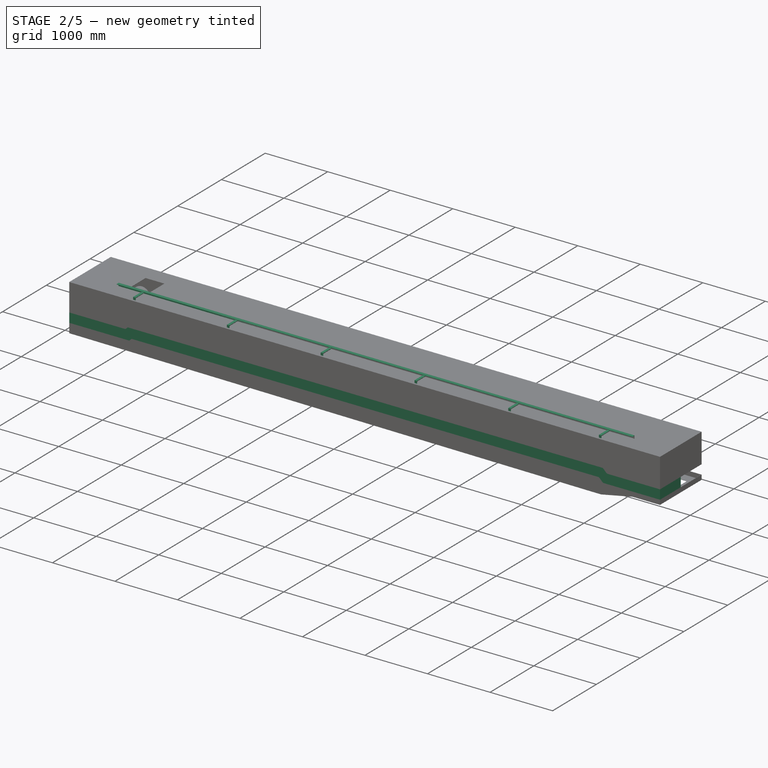
[diagram: stage 2 of 5 — iso view after this stage's code; geometry added in this stage tinted green]
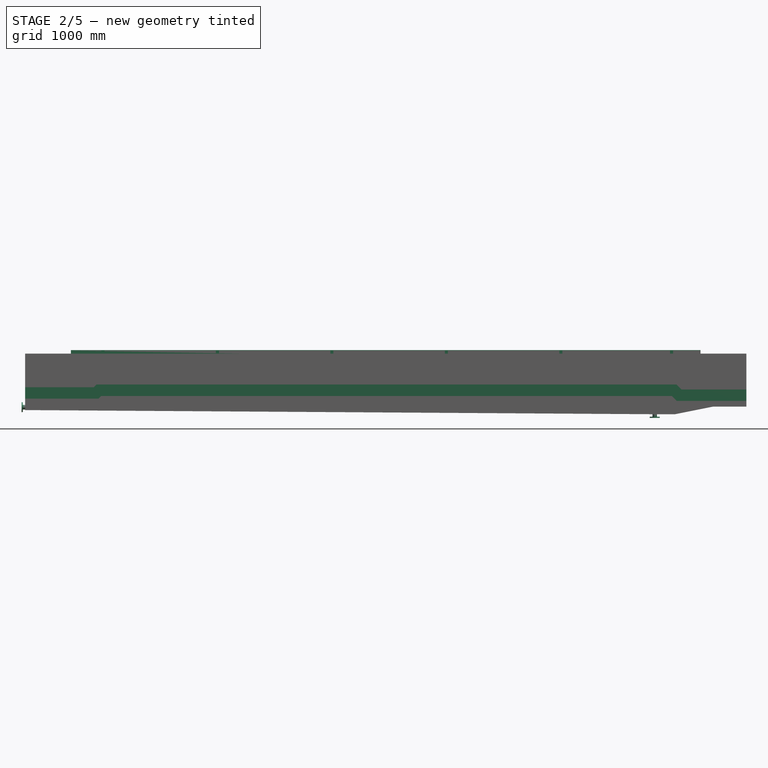
[diagram: stage 2 of 5 — front view after this stage's code; geometry added in this stage tinted green]
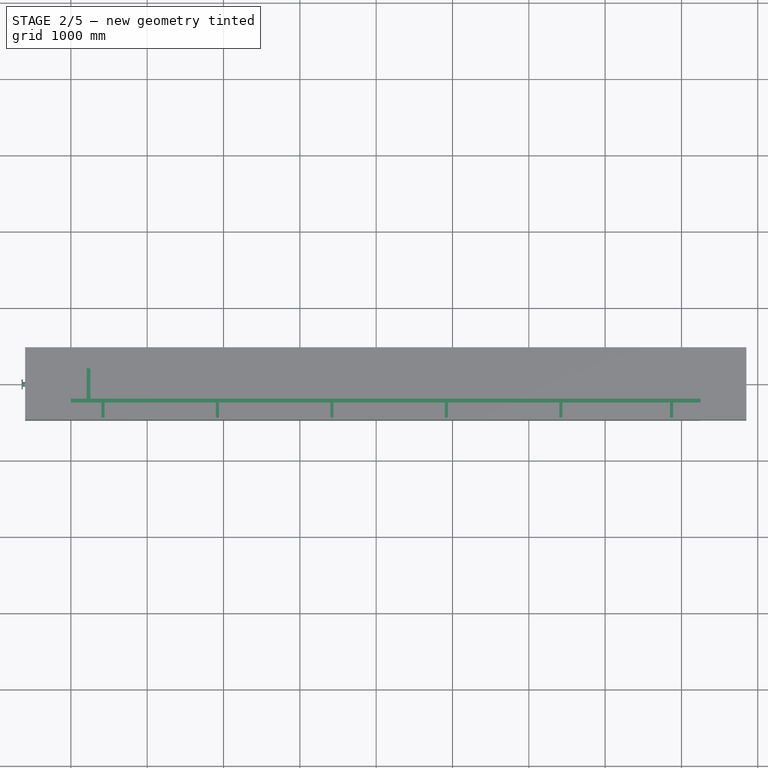
[diagram: stage 2 of 5 — top view after this stage's code; geometry added in this stage tinted green]
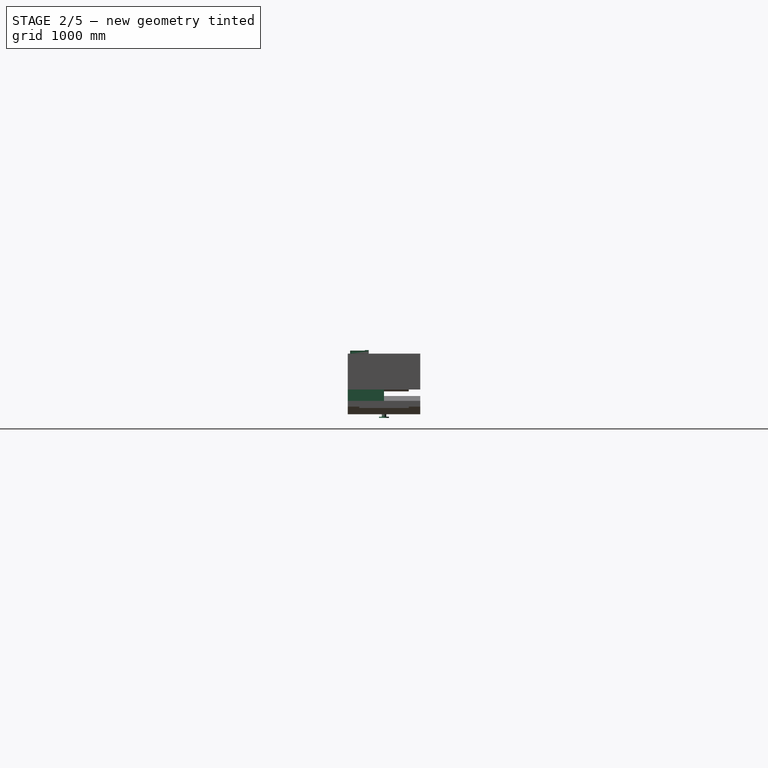
[diagram: stage 2 of 5 — right view after this stage's code; geometry added in this stage tinted green]
FEATURE [Spreadsheet::Sheet] Spreadsheet  label="shtFrame"
  cells = A1='MotorPulley; C1='tailPulleyHIght Ht; D1='Inclination k(degree); E1='Array_n; F1='BeltWidth B0; G1='h1; H1='h2; I1='post_x; J1='pst_c; K1='z; L1='zb; M1='zs; N1='za; O1='zr; P1='vx; Q1='vh; R1='vh2; S1='hsk; T1='hsk2; A2='CenterDistance C0; B2(C0)=8250; C2(Ht)=700; D2(k)=0; E2(n0)==C0 / 2500; F2==B0; G2(h1)=35; H2(h2)=65; I2(post_x)=2316.67; J2(post_c)=2; K2(z)=-2; L2(zb)=150; M2(zs)=255; N2(za)=75; O2(zr)=200; P2(vx)=700; Q2(vh)=15; R2(vh2)=120; S2(hsk)=150; T2(hsk2)=390; A3='BeltWidth B0; B3(B0)=600; C3=400; D3=450; E3=500; F3=600; G3=700; H3=750; I3=800; J3=900; K3=1000; L3=150; A4='Belt b1; B4(b1)=210; C4=145; D4=165; E4=180; F4=210; G4=250; H4=265; I4=280; J4=315; K4=345; L4=150; A5='Belt b2; B5(b2)=195; C5==(C3 - C4) / 2; D5==(D3 - D4) / 2; E5==(E3 - E4) / 2; F5==(F3 - F4) / 2; G5==(G3 - G4) / 2; H5==(H3 - H4) / 2; I5==(I3 - I4) / 2; J5==(J3 - J4) / 2; K5==(K3 - K4) / 2; L5=150; A6='BeltThickness t0; B6(t0)=10; C6=10; D6=10; E6=10; F6=10; G6=10; H6=10; I6=10; J6=10; K6=10; L6=150; A7='HeadPullyDia D0; B7(D0)=360; C7=290; D7=300; E7=360; F7=360; G7=360; H7=460; I7=460; J7=520; K7=520; L7=150; A8='TailPullyDia d1; B8(d1)==D0 * 0.8; C8==C7 * 0.8; D8==D7 * 0.8; E8==E7 * 0.8; F8==F7 * 0.8; G8==G7 * 0.8; H8==H7 * 0.8; I8==I7 * 0.8; J8==J7 * 0.8; K8==K7 * 0.8; L8=150; A9='SnapPullyDia d2; B9(d2)=200; C9=200; D9=200; E9=200; F9=200; G9=200; H9=200; I9=200; J9=200; K9=200; L9=150; A10='SnapPully Ls; B10(Ls)=500; C10=400; D10=400; E10=400; F10=500; G10=500; H10=500; I10=500; J10=500; K10=500; L10=150; A11='SnapPully h0; B11(h0)=180; C11=180; D11=180; E11=160; F11=180; G11=180; H11=180; I11=180; J11=180; K11=180; L11=150; A12='hontaihaba W0; B12(W0)=950; C12=710; D12=760; E12=810; F12=910; G12=1010; H12=1060; I12=1110; J12=1210; K12=1310; L12=150; A13='hontai _h; B13=103.5; C13=103.5; D13=103.5; E13=103.5; F13=103.5; G13=103.5; H13=103.5; I13=103.5; J13=103.5; K13=103.5; L13=150; A14='hontai_z; B14=16; C14=16; D14=16; E14=16; F14=16; G14=16; H14=16; I14=16; J14=16; K14=16; L14=150; A15='takeup_x; B15=-403.47; C15=-403.47; D15=-403.47; E15=-403.47; F15=-403.47; G15=-403.47; H15=-403.47; I15=-403.47; J15=-403.47; K15=-403.47; L15=150; A16='takeup_y; B16(Y)=410; C16=-362.8; D16=-362.8; E16=-362.8; +49 more cells
FEATURE [Sketcher::SketchObject] Sketch007
  ArcFitTolerance = 0
  FullyConstrained = true
  MakeInternals = false
  MapMode = 5
  Placement = pos=(0,0,14) rot=(1,0,0;1.5708rad)
  expr: Constraints[11] = Spreadsheet.C0 + 600
  expr: Constraints[14] = <<shtFrame>>.h1
  expr: Constraints[15] = <<shtFrame>>.h2
  sketch-geometry (5):
    g0: LineSegment StartX=-600 StartY=-99 StartZ=0 EndX=250 EndY=-99 EndZ=0
    g1: LineSegment StartX=250 StartY=-99 StartZ=0 EndX=285 EndY=-64 EndZ=0
    g2: LineSegment StartX=285 StartY=-64 StartZ=0 EndX=7585 EndY=-64 EndZ=0
    g3: LineSegment StartX=7585 StartY=-64 StartZ=0 EndX=7650 EndY=-129 EndZ=0
    g4: LineSegment StartX=7650 StartY=-129 StartZ=0 EndX=8850 EndY=-129 EndZ=0
  constraints (16):
    c: Horizontal(g0)
    c: Coincident(g0,g1)
    c: Coincident(g1,g2)
    c: Horizontal(g2)
    c: Coincident(g2,g3)
    c: Coincident(g3,g4)
    c: Horizontal(g4)
    c: DistanceX(g0,g-1) = 600
    c: Angle(g1,g0) = 2.35619
    c: DistanceX(g-1,g0) = 250
    c: Angle(g4,g3) = 2.35619
    c: DistanceX(g-1,g4) = 8850
    c: DistanceX(g4,g4) = 1200
    c: DistanceY(g0,g-1) = 99
    c: DistanceY(g0,g1) = 35
    c: DistanceY(g3,g3) = 65
FEATURE [Part::Feature] ChannelSteel001
  Placement = pos=(-600,-2.2e-14,-239) rot=(0,0,1;0rad)
  shape: bbox 2e-07 x 75 x 150 mm, 0 faces, 0 solids (baked)
FEATURE [Sketcher::SketchObject] Sketch011
  ArcFitTolerance = 0
  FullyConstrained = true
  MakeInternals = false
  MapMode = 5
  Placement = pos=(0,0,0) rot=(1,0,0;1.5708rad)
  expr: Constraints[13] = Spreadsheet.C0
  expr: Constraints[16] = Spreadsheet.h1
  expr: Constraints[18] = Spreadsheet.h2
  sketch-geometry (6):
    g0: LineSegment StartX=-600 StartY=-89 StartZ=0 EndX=300 EndY=-89 EndZ=0
    g1: LineSegment StartX=300 StartY=-89 StartZ=0 EndX=335 EndY=-54 EndZ=0
    g2: LineSegment StartX=335 StartY=-54 StartZ=0 EndX=7935 EndY=-54 EndZ=0
    g3: LineSegment StartX=7935 StartY=-54 StartZ=0 EndX=8000 EndY=-119 EndZ=0
    g4: LineSegment StartX=8000 StartY=-119 StartZ=0 EndX=8850 EndY=-119 EndZ=0
    g5: LineSegment [constr] StartX=0 StartY=0 StartZ=0 EndX=8250 EndY=0 EndZ=0
  constraints (19):
    c: Horizontal(g0)
    c: Coincident(g0,g1)
    c: Coincident(g1,g2)
    c: Horizontal(g2)
    c: Coincident(g2,g3)
    c: Coincident(g3,g4)
    c: Horizontal(g4)
    c: DistanceX(g0,g-1) = 600
    c: DistanceX(g-1,g0) = 300
    c: Angle(g1,g0) = 2.35619
    c: Angle(g4,g3) = 2.35619
    c: PointOnObject(g5,g-1)
    c: Coincident(g5,g-1)
    c: DistanceX(g5,g5) = 8250
    c: DistanceX(g5,g4) = 600
    c: DistanceX(g3,g5) = 250
    c: DistanceY(g0,g1) = 35
    c: DistanceY(g-1,g0) = -89
    c: DistanceY(g3,g3) = 65
FEATURE [Part::Sweep] Sweep001
  Frenet = false
  Placement = pos=(0,-475,0) rot=(0,0,1;0rad)
  Sections = -> [ChannelSteel001]
  Solid = true
  Spine = -> Sketch011 [Edge1,Edge2,Edge3,Edge4,Edge5]
  Transition = 1
  expr: .Placement.Base.y = -Spreadsheet.W0 / 2
FEATURE [Part::FeaturePython] ChannelSteel  # WARN: FeaturePython — macro-defined, semantics opaque (R4)
  B = 75
  H = 150
  L = 1000
  Placement = pos=(-600,0,-239) rot=(0,0,1;0rad)
  Solid = false
  g0 = 7.85
  mass = 0
  size = 3
  standard = SS
  t1 = 6.5
  t2 = 10
FEATURE [Part::Extrusion] Extrude006
  Base = -> ChannelSteel
  Dir = (0,1,0)
  DirMode = 2
  FaceMakerClass = Part::FaceMakerBullseye
  FaceMakerMode = 3
  LengthFwd = 475
  LengthRev = 0
  Reversed = true
  Solid = false
  Symmetric = false
  expr: LengthFwd = Spreadsheet.W0 / 2
FEATURE [Part::FeaturePython] ChannelSteel002  # WARN: FeaturePython — macro-defined, semantics opaque (R4)
  B = 75
  H = 150
  L = 1000
  Placement = pos=(8850,0,-112) rot=(0,1,0;3.14159rad)
  Solid = false
  g0 = 7.85
  mass = 0
  size = 3
  standard = SS
  t1 = 6.5
  t2 = 10
  expr: .Placement.Base.x = Spreadsheet.C0 + 600
FEATURE [Part::Extrusion] Extrude007
  Base = -> ChannelSteel002
  Dir = (0,1,0)
  DirMode = 2
  FaceMakerClass = Part::FaceMakerBullseye
  FaceMakerMode = 3
  LengthFwd = 475
  LengthRev = 0
  Placement = pos=(0,0,-7) rot=(0,0,1;0rad)
  Reversed = true
  Solid = false
  Symmetric = false
  expr: .Placement.Base.z = <<shtFrame>>.h1 - <<shtFrame>>.h2 + 23
  expr: LengthFwd = Spreadsheet.W0 / 2
FEATURE [Part::MultiFuse] Fusion
  Refine = true
  Shapes = -> [Sweep001,Extrude006]
FEATURE [Part::Extrusion] Extrude003
  Base = -> Sketch012
  Dir = (0,0,1)
  DirMode = 2
  FaceMakerClass = Part::FaceMakerBullseye
  FaceMakerMode = 3
  LengthFwd = 12
  LengthRev = 0
  Solid = true
  Symmetric = false
FEATURE [Part::MultiFuse] Fusion001
  Refine = true
  Shapes = -> [Fusion,Extrude003]
FEATURE [Part::MultiFuse] Fusion002
  Refine = true
  Shapes = -> [Fusion001,Extrude007]
FEATURE [Part::FeaturePython] Single_flange_straight_pipe  # WARN: FeaturePython — macro-defined, semantics opaque (R4)
  L = 50
  Placement = pos=(7650,0,-482.41) rot=(0,-1,0;1.5708rad)
  dia = 6
  fittings = 06_Single_flange_straight_pipe
  material = 0
  standard = 0
  standard2 = 0
  expr: .Placement.Base.x = Spreadsheet005.C0 - 600
FEATURE [Sketcher::SketchObject] Sketch024
  ArcFitTolerance = 0
  FullyConstrained = false
  MakeInternals = false
  MapMode = 5
  Placement = pos=(0,-1.041e-13,-469) rot=(0,0,1;0rad)
  expr: Constraints[1] = Spreadsheet005.C0 - 750
  sketch-geometry (1):
    g0: Circle CenterX=7500 CenterY=0 CenterZ=0 NormalX=0 NormalY=0 NormalZ=1 AngleXU=0 Radius=30.4407
  constraints (2):
    c: PointOnObject(g0,g-1)
    c: DistanceX(g-1,g0) = 7500
FEATURE [Part::MultiFuse] Fusion009
  Placement = pos=(0,0,-8) rot=(0,0,1;0rad)
  Shapes = -> [Single_flange_straight_pipe]
  expr: .Placement.Base.z = -8 + 65 - <<shtFrame>>.h2
FEATURE [Part::FeaturePython] Single_flange_straight_pipe001  # WARN: FeaturePython — macro-defined, semantics opaque (R4)
  L = 50
  Placement = pos=(-645,0,-351.37) rot=(0,0,1;0rad)
  dia = 6
  fittings = 06_Single_flange_straight_pipe
  material = 0
  standard = 0
  standard2 = 0
FEATURE [Sketcher::SketchObject] Sketch054
  ArcFitTolerance = 1e-06
  AttachmentSupport = -> [XZ_Plane041]
  FullyConstrained = true
  MakeInternals = false
  MapMode = 5
  Placement = pos=(0,0,0) rot=(1,0,0;1.5708rad)
  expr: Constraints[11] = Spreadsheet006.h0 + 10
  expr: Constraints[8] = Spreadsheet006.w0
  expr: Constraints[9] = Spreadsheet006.sita0
  sketch-geometry (5):
    g0: LineSegment StartX=-200 StartY=0 StartZ=0 EndX=200 EndY=0 EndZ=0
    g1: LineSegment StartX=200 StartY=0 StartZ=0 EndX=200 EndY=60 EndZ=0
    g2: LineSegment StartX=200 StartY=60 StartZ=0 EndX=-200 EndY=60 EndZ=0
    g3: LineSegment StartX=-200 StartY=60 StartZ=0 EndX=-200 EndY=0 EndZ=0
    g4: GeomPoint X=6.5e-15 Y=60 Z=0
  constraints (12):
    c: PointOnObject(g0,g-1)
    c: Coincident(g0,g1)
    c: Vertical(g1)
    c: Coincident(g1,g2)
    c: Coincident(g2,g3)
    c: Coincident(g3,g0)
    c: Vertical(g3)
    c: Symmetric(g0,g0,g-2)
    c: DistanceX(g0,g0) = 400
    c: Angle(g0,g2) = 0
    c: Symmetric(g2,g2,g4)
    c: DistanceY(g-1,g4) = 60
FEATURE [PartDesign::Pad] Pad003
  Direction = (0,-1,2e-16)
  Length = 650
  Length2 = 10
  Midplane = true
  Placement = pos=(0,0,0) rot=(1,0,0;1.5708rad)
  Profile = -> Sketch054
  ReferenceAxis = -> Sketch054 [N_Axis]
  Refine = true
  Suppressed = false
  Type = 0
  expr: Length = Spreadsheet006.l0
FEATURE [PartDesign::Body] Body002
  AllowCompound = false
  Group = -> [Sketch054,Pad003]
  Origin = -> Origin041
  Tip = -> Pad003
FEATURE [Sketcher::SketchObject] Sketch055
  ArcFitTolerance = 1e-06
  AttachmentSupport = -> [XZ_Plane004]
  FullyConstrained = true
  MakeInternals = false
  MapMode = 5
  Placement = pos=(0,0,0) rot=(1,0,0;1.5708rad)
  expr: .Constraints.sita = Spreadsheet006.sita0
  expr: Constraints[11] = Spreadsheet006.h0
  expr: Constraints[8] = Spreadsheet006.w0 + Spreadsheet006.t0 * 2
  sketch-geometry (5):
    g0: LineSegment StartX=-206 StartY=0 StartZ=0 EndX=206 EndY=0 EndZ=0
    g1: LineSegment StartX=206 StartY=0 StartZ=0 EndX=206 EndY=50 EndZ=0
    g2: LineSegment StartX=206 StartY=50 StartZ=0 EndX=-206 EndY=50 EndZ=0
    g3: LineSegment StartX=-206 StartY=50 StartZ=0 EndX=-206 EndY=0 EndZ=0
    g4: GeomPoint X=-6.4e-15 Y=50 Z=0
  constraints (12):
    c: PointOnObject(g0,g-1)
    c: Coincident(g0,g1)
    c: Vertical(g1)
    c: Coincident(g1,g2)
    c: Coincident(g2,g3)
    c: Coincident(g3,g0)
    c: Vertical(g3)
    c: Symmetric(g0,g0,g-2)
    c: DistanceX(g0,g0) = 412
    c: Angle(g0,g2) = 0  'sita'
    c: Symmetric(g2,g2,g4)
    c: DistanceY(g-1,g4) = 50
FEATURE [PartDesign::Pad] Pad008
  Direction = (0,-1,2e-16)
  Length = 662
  Length2 = 10
  Midplane = true
  Placement = pos=(0,0,0) rot=(1,0,0;1.5708rad)
  Profile = -> Sketch055
  ReferenceAxis = -> Sketch055 [N_Axis]
  Refine = true
  Suppressed = false
  Type = 0
  expr: Length = Spreadsheet006.l0 + Spreadsheet006.t0 * 2
FEATURE [Sketcher::SketchObject] Sketch056
  ArcFitTolerance = 1e-06
  AttachmentSupport = -> [Pad008]
  FullyConstrained = true
  MakeInternals = false
  MapMode = 5
  Placement = pos=(0,1.11e-14,50) rot=(0,0,1;3.14159rad)
  expr: .AttachmentOffset.Base.x = -<<shtOutlet>>.h0 * sin(<<shtOutlet>>.sita0) * cos(<<shtOutlet>>.sita0)
  expr: Constraints[10] = (Spreadsheet006.w0 + Spreadsheet006.t0 * 2 + Spreadsheet006.b0 * 2) / cos(Spreadsheet006.sita0)
  expr: Constraints[11] = Spreadsheet006.l0 + Spreadsheet006.t0 * 2 + Spreadsheet006.b0 * 2
  sketch-geometry (5):
    g0: LineSegment StartX=-256 StartY=-381 StartZ=0 EndX=256 EndY=-381 EndZ=0
    g1: LineSegment StartX=256 StartY=-381 StartZ=0 EndX=256 EndY=381 EndZ=0
    g2: LineSegment StartX=256 StartY=381 StartZ=0 EndX=-256 EndY=381 EndZ=0
    g3: LineSegment StartX=-256 StartY=381 StartZ=0 EndX=-256 EndY=-381 EndZ=0
    g4: GeomPoint [constr] X=0 Y=0 Z=0
  constraints (12):
    c: Coincident(g0,g1)
    c: Coincident(g1,g2)
    c: Coincident(g2,g3)
    c: Coincident(g3,g0)
    c: Horizontal(g0)
    c: Horizontal(g2)
    c: Vertical(g1)
    c: Vertical(g3)
    c: Symmetric(g2,g0,g4)
    c: Coincident(g4,g-1)
    c: DistanceX(g2,g2) = 512
    c: DistanceY(g3,g3) = 762
FEATURE [PartDesign::Pad] Pad009
  BaseFeature = -> Pad008
  Direction = (0,0,1)
  Length = 6
  Length2 = 10
  Placement = pos=(0,0,0) rot=(1,0,0;1.5708rad)
  Profile = -> Sketch056
  ReferenceAxis = -> Sketch056 [N_Axis]
  Refine = true
  Suppressed = false
  Type = 0
FEATURE [PartDesign::Body] Body006  label="Body007"
  AllowCompound = false
  Group = -> [Sketch055,Pad008,Sketch056,Pad009]
  Origin = -> Origin004
  Tip = -> Pad009
FEATURE [Part::Cut] Cut003
  Base = -> Body006
  Placement = pos=(0,0,0) rot=(0,1,0;3.14159rad)
  Refine = true
  Tool = -> Body002
FEATURE [Spreadsheet::Sheet] Spreadsheet006  label="shtOutlet"
  cells = A1='outlet; A2='w0; B2(w0)=400; A3='l0; B3(l0)==<<shtFrame>>.B0 + 50; A4='t0; B4(t0)=6; A5='h0; B5(h0)=50; A6='b0; B6(b0)=50; A7='sita0; B7(sita0)=0
FEATURE [App::Part] Part030  label="outlet"
  Group = -> [Spreadsheet006,Body002,Body006,Cut003]
  Origin = -> Origin005
  Placement = pos=(8518,0,-340) rot=(0,0,1;0rad)
  expr: .Placement.Base.x = Spreadsheet005.C0 + 268
  expr: .Placement.Base.z = -340 + 65 - <<shtFrame>>.h2
FEATURE [Sketcher::SketchObject] Sketch058
  ArcFitTolerance = 0
  FullyConstrained = true
  MakeInternals = false
  Placement = pos=(0,0,0) rot=(0.57735,0.57735,0.57735;2.0944rad)
  expr: Constraints[15] = <<shtFrame>>.hsk
  expr: Constraints[17] = <<shtFrame>>.hsk2 + 6
  expr: Constraints[5] = (Spreadsheet007.B0 - 200) / 2
  sketch-geometry (6):
    g0: LineSegment StartX=200 StartY=246 StartZ=0 EndX=206 EndY=246 EndZ=0
    g1: LineSegment StartX=206 StartY=246 StartZ=0 EndX=206 EndY=390 EndZ=0
    g2: LineSegment StartX=200 StartY=396 StartZ=0 EndX=200 EndY=246 EndZ=0
    g3: LineSegment StartX=250 StartY=396 StartZ=0 EndX=250 EndY=390 EndZ=0
    g4: LineSegment StartX=250 StartY=390 StartZ=0 EndX=206 EndY=390 EndZ=0
    g5: LineSegment StartX=200 StartY=396 StartZ=0 EndX=250 EndY=396 EndZ=0
  constraints (18):
    c: Coincident(g0,g1)
    c: Coincident(g2,g0)
    c: Horizontal(g0)
    c: Vertical(g1)
    c: Vertical(g2)
    c: DistanceX(g-2,g2) = 200
    c: Vertical(g3)
    c: Coincident(g3,g4)
    c: Horizontal(g4)
    c: Coincident(g1,g4)
    c: Coincident(g5,g2)
    c: Coincident(g5,g3)
    c: Horizontal(g5)
    c: DistanceY(g3,g3) = 6
    c: DistanceX(g5,g5) = 50
    c: DistanceY(g2,g2) = 150
    c: DistanceX(g0,g0) = 6
    c: DistanceY(g-1,g2) = 396
FEATURE [Part::Extrusion] Extrude010
  Base = -> Sketch058
  Dir = (1,0,0)
  DirMode = 2
  FaceMakerClass = Part::FaceMakerBullseye
  FaceMakerMode = 3
  LengthFwd = 8250
  LengthRev = 0
  Solid = true
  Symmetric = false
  expr: LengthFwd = Spreadsheet007.C0
FEATURE [App::Part] Part009  label="post001"
  Group = -> [Sketch059,Sweep002,AngleSteel001]
  Origin = -> Origin043
FEATURE [Part::FeaturePython] Array003  # Draft array (typed FeaturePython)
  AlwaysSyncPlacement = false
  Angle = 360
  ArrayType = 0
  Axis = (0,0,1)
  Base = -> Part009
  Center = (0,0,0)
  Count = 5
  ExpandArray = false
  Fuse = false
  IntervalAxis = (0,0,0)
  IntervalX = (1500,0,0)
  IntervalY = (0,100,0)
  IntervalZ = (0,0,100)
  NumberCircles = 3
  NumberPolar = 5
  NumberX = 5
  NumberY = 1
  NumberZ = 1
  Placement = pos=(400,0,0) rot=(0,0,1;0rad)
  PlacementList = 5 placements: arithmetic series from (0,0,0) step (1500,0,0) to (6000,0,0)
  RadialDistance = 50
  ScaleList = (5) [(1,1,1),(1,1,1),(1,1,1),(1,1,1),(1,1,1)]
  Symmetry = 1
  TangentialDistance = 25
  expr: .IntervalX.x = 1500 mm
  expr: .Placement.Base.x = 400
  expr: NumberX = (Spreadsheet007.C0 - 1000) / 1500
FEATURE [Spreadsheet::Sheet] Spreadsheet007  label="shtSkt"
  cells = C1='tailPulleyHIght Ht; D1='Inclination k(degree); E1='Array_n; F1='BeltWidth B0; G1='h1; H1='h2; I1='post_x; J1='pst_c; A2='CenterDistance C0; B2(C0)==<<shtFrame>>.C0; C2(Ht)=1000; D2(k)=0; E2(n0)==C0 / 2500; F2=500; G2(h1)=50; H2(h2)=73; I2(post_x)=2350; J2(post_c)=1; A3='BeltWidth B0; B3(B0)==<<shtFrame>>.B0; C3=400; D3=450; E3=500; F3=600; G3=700; H3=750; I3=800; J3=900; K3=1000; A4='Belt b1; B4(b1)=210; C4=145; D4=165; E4=180; F4=210; G4=250; H4=265; I4=280; J4=315; K4=345; A5='Belt b2; B5(b2)=195; C5==(C3 - C4) / 2; D5==(D3 - D4) / 2; E5==(E3 - E4) / 2; F5==(F3 - F4) / 2; G5==(G3 - G4) / 2; H5==(H3 - H4) / 2; I5==(I3 - I4) / 2; J5==(J3 - J4) / 2; K5==(K3 - K4) / 2; A6='BeltThickness t0; B6(t0)=10; C6=10; D6=10; E6=10; F6=10; G6=10; H6=10; I6=10; J6=10; K6=10; A7='HeadPullyDia D0; B7(D0)=460; C7=300; D7=300; E7=360; F7=360; G7=360; H7=460; I7=460; J7=520; K7=520; A8='TailPullyDia d1; B8(d1)=380; C8=260; D8=260; E8=300; F8=300; G8=300; H8=390; I8=390; J8=440; K8=440; A9='SnapPullyDia d2; B9(d2)=200; C9=200; D9=200; E9=200; F9=200; G9=200; H9=200; I9=200; J9=200; K9=200; A10='SnapPully Ls; B10(Ls)=500; C10=400; D10=400; E10=400; F10=500; G10=500; H10=500; I10=500; J10=500; K10=500; A11='SnapPully h0; B11(h0)=180; C11=180; D11=180; E11=160; F11=180; G11=180; H11=180; I11=180; J11=180; K11=180; A12='hontaihaba W; B12(W0)=1010; C12=710; D12=760; E12=810; F12=910; G12=910; H12=910; I12=910; J12=910; K12=910; A13='hontai _h; B13=103.5; C13=103.5; D13=103.5; E13=103.5; F13=103.5; G13=103.5; H13=103.5; I13=103.5; J13=103.5; K13=103.5; A14='hontai_z; B14=16; C14=16; D14=16; E14=16; F14=16; G14=16; H14=16; I14=16; J14=16; K14=16; A15='takeup_x; B15=-403.47; C15=-403.47; D15=-403.47; E15=-403.47; F15=-403.47; G15=-403.47; H15=-403.47; I15=-403.47; J15=-403.47; K15=-403.47; A16='takeup_y; B16=-362.8; C16=-362.8; D16=-362.8; E16=-362.8; F16=-410; G16=-410; H16=-410; I16=-410; J16=-410; K16=-410; A17='takeup_z; B17=-87; C17=-87; D17=-87; E17=-87; F17=-57; G17=-57; H17=-57; I17=-57; J17=-57; K17=-57; A18='carrierPitch  cp; B18=1000; A19='returnPitch rp; B19=1500; A20='outletL; B20(outletL)=50; A21='outletK; B21(outletK)=0; A22='insertX; B22(insertX)=300; A23='insertK; B23(insertK)=0
FEATURE [Part::FeaturePython] Clone003  label="post002"  # Draft clone (typed FeaturePython)
  AttacherType = Attacher::AttachEngine3D
  Fuse = false
  Objects = -> [Part009]
  Placement = pos=(7850,0,0) rot=(0,0,1;0rad)
  Scale = (1,1,1)
  expr: .Placement.Base.x = Spreadsheet007.C0 - 400
  expr: .Placement.Base.y = (<<shtSkt>>.B0 - 600) / 2
FEATURE [Part::FeaturePython] Clone004  label="post003"  # Draft clone (typed FeaturePython)
  AttacherType = Attacher::AttachEngine3D
  Fuse = false
  Objects = -> [Part009]
  Placement = pos=(7850,0,0) rot=(0,0,1;0rad)
  Scale = (1,1,1)
  expr: .Placement.Base.x = <<shtSkt>>.C0 - 400
FEATURE [App::Part] Part008  label="skirt"
  Group = -> [Sketch058,Extrude010,Part009,Clone003,Array003,Clone004]
  Origin = -> Origin042
FEATURE [Part::Mirroring] Mirror005  label="skirt001"
  Base = (-900,0,0)
  Normal = (0,-1,0)
  Source = -> Part008
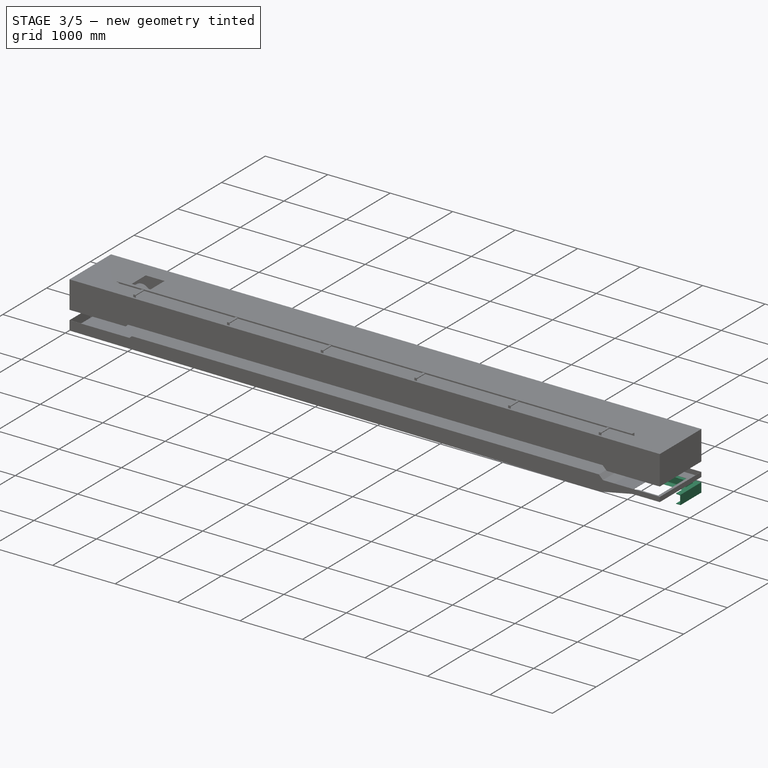
[diagram: stage 3 of 5 — iso view after this stage's code; geometry added in this stage tinted green]
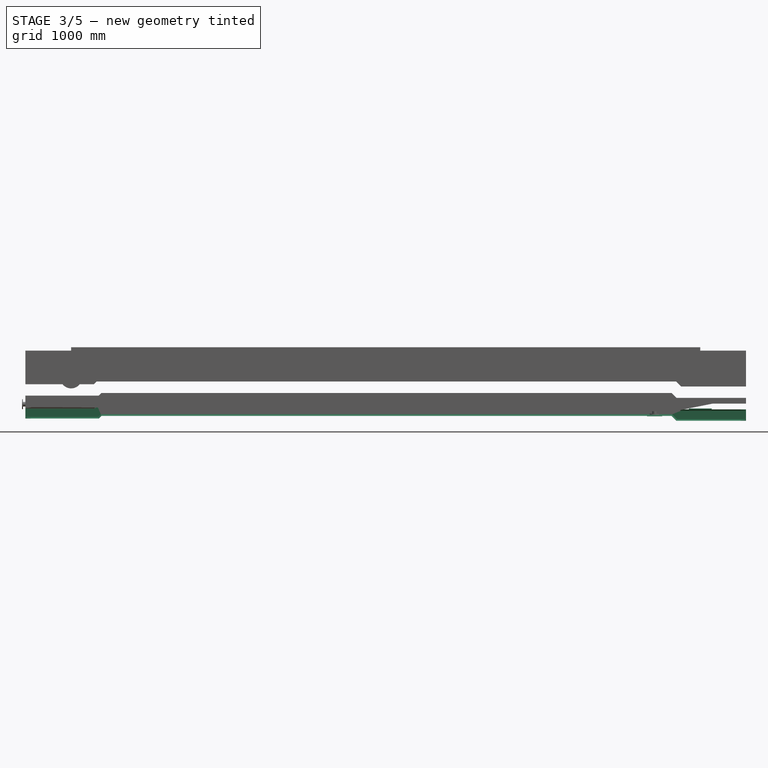
[diagram: stage 3 of 5 — front view after this stage's code; geometry added in this stage tinted green]
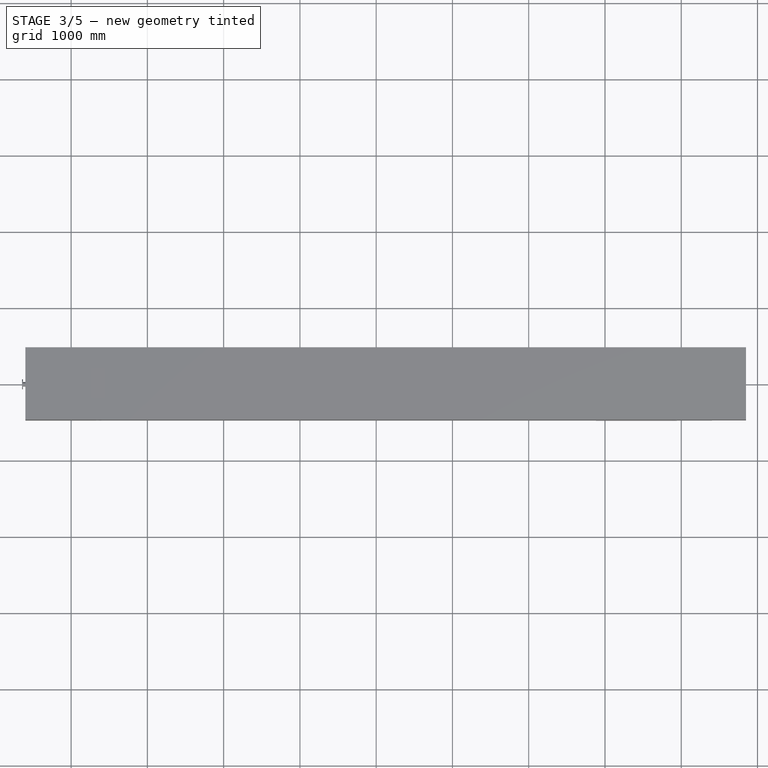
[diagram: stage 3 of 5 — top view after this stage's code; geometry added in this stage tinted green]
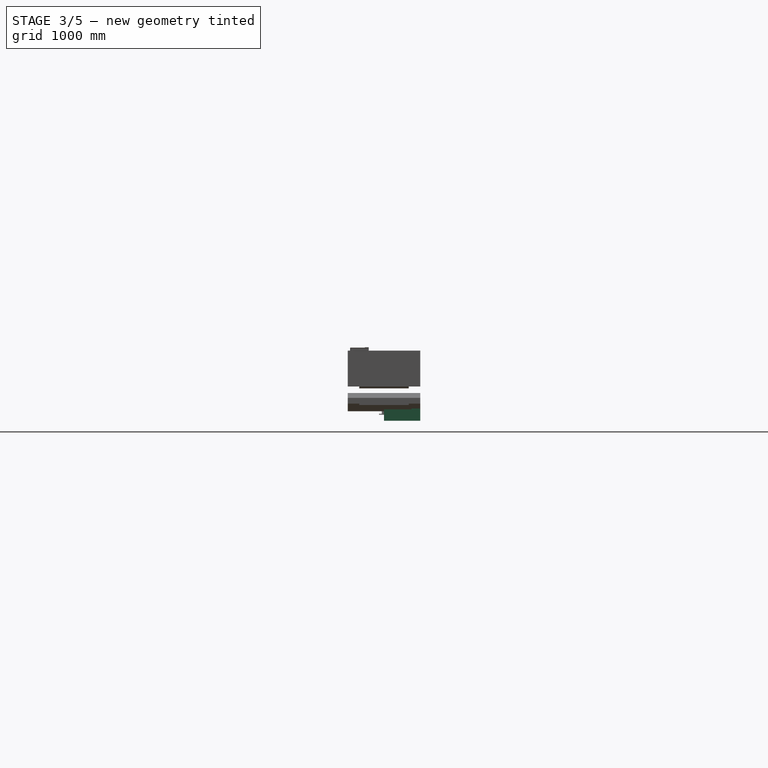
[diagram: stage 3 of 5 — right view after this stage's code; geometry added in this stage tinted green]
FEATURE [Sketcher::SketchObject] Sketch012
  ArcFitTolerance = 0
  AttachmentSupport = -> [Sweep001]
  FullyConstrained = true
  MakeInternals = false
  MapMode = 5
  Placement = pos=(0,-475,-89) rot=(0,0,1;0rad)
  sketch-geometry (4):
    g0: LineSegment StartX=-480 StartY=8 StartZ=0 EndX=185 EndY=8 EndZ=0
    g1: LineSegment StartX=185 StartY=8 StartZ=0 EndX=185 EndY=83 EndZ=0
    g2: LineSegment StartX=185 StartY=83 StartZ=0 EndX=-480 EndY=83 EndZ=0
    g3: LineSegment StartX=-480 StartY=83 StartZ=0 EndX=-480 EndY=8 EndZ=0
  constraints (12):
    c: Coincident(g0,g1)
    c: Coincident(g1,g2)
    c: Coincident(g2,g3)
    c: Coincident(g3,g0)
    c: Horizontal(g0)
    c: Horizontal(g2)
    c: Vertical(g1)
    c: Vertical(g3)
    c: DistanceY(g1,g1) = 75
    c: DistanceY(g-1,g0) = 8
    c: DistanceX(g-1,g0) = 185
    c: DistanceX(g0,g0) = 665
FEATURE [Sketcher::SketchObject] Sketch013
  ArcFitTolerance = 0
  AttachmentSupport = -> [Sweep001]
  FullyConstrained = false
  MakeInternals = false
  MapMode = 5
  Placement = pos=(0,-475,-119) rot=(0,0,1;0rad)
  expr: Constraints[13] = <<shtFrame>>.C0
  sketch-geometry (5):
    g0: LineSegment StartX=8100 StartY=5 StartZ=0 EndX=8400 EndY=5 EndZ=0
    g1: LineSegment StartX=8400 StartY=5 StartZ=0 EndX=8400 EndY=115 EndZ=0
    g2: LineSegment StartX=8400 StartY=115 StartZ=0 EndX=8100 EndY=115 EndZ=0
    g3: LineSegment StartX=8100 StartY=115 StartZ=0 EndX=8100 EndY=5 EndZ=0
    g4: LineSegment [constr] StartX=8250 StartY=5 StartZ=0 EndX=8250 EndY=-172.043 EndZ=0
  constraints (14):
    c: Coincident(g0,g3)
    c: Coincident(g3,g2)
    c: Vertical(g3)
    c: Horizontal(g2)
    c: Coincident(g2,g1)
    c: Coincident(g0,g1)
    c: Vertical(g1)
    c: DistanceY(g3,g3) = 110
    c: Horizontal(g0)
    c: Symmetric(g0,g0,g4)
    c: Distance(g0,g-1) = 5
    c: DistanceX(g0,g0) = 300
    c: Vertical(g4)
    c: DistanceX(g-1,g4) = 8250
FEATURE [Part::Extrusion] Extrude004
  Base = -> Sketch013
  Dir = (0,0,1)
  DirMode = 2
  FaceMakerClass = Part::FaceMakerBullseye
  FaceMakerMode = 3
  LengthFwd = 12
  LengthRev = 0
  Solid = true
  Symmetric = false
FEATURE [Sketcher::SketchObject] Sketch014
  ArcFitTolerance = 0
  AttachmentSupport = -> [Sweep001]
  FullyConstrained = false
  MakeInternals = false
  MapMode = 5
  Placement = pos=(0,-475,-204) rot=(1,0,0;3.14159rad)
  expr: Constraints[13] = Spreadsheet.C0 - 600
  sketch-geometry (5):
    g0: LineSegment StartX=7550 StartY=-9 StartZ=0 EndX=7750 EndY=-9 EndZ=0
    g1: LineSegment StartX=7750 StartY=-9 StartZ=0 EndX=7750 EndY=-79 EndZ=0
    g2: LineSegment StartX=7750 StartY=-79 StartZ=0 EndX=7550 EndY=-79 EndZ=0
    g3: LineSegment StartX=7550 StartY=-79 StartZ=0 EndX=7550 EndY=-9 EndZ=0
    g4: LineSegment [constr] StartX=7650 StartY=33.7597 StartZ=0 EndX=7650 EndY=-194.785 EndZ=0
  constraints (14):
    c: Coincident(g0,g1)
    c: Coincident(g1,g2)
    c: Coincident(g2,g3)
    c: Coincident(g3,g0)
    c: Horizontal(g0)
    c: Horizontal(g2)
    c: Vertical(g1)
    c: Vertical(g3)
    c: Vertical(g4)
    c: DistanceX(g0,g0) = 200
    c: DistanceY(g3,g3) = 70
    c: DistanceX(g4,g0) = 100
    c: DistanceY(g-1,g0) = -9
    c: DistanceX(g-1,g4) = 7650
FEATURE [Part::Extrusion] Extrude005
  Base = -> Sketch014
  Dir = (0,0,-1)
  DirMode = 2
  FaceMakerClass = Part::FaceMakerBullseye
  FaceMakerMode = 3
  LengthFwd = 6
  LengthRev = 0
  Solid = true
  Symmetric = false
FEATURE [Part::MultiFuse] Fusion003
  Shapes = -> [Fusion002,Extrude004]
FEATURE [Part::MultiFuse] Fusion004
  Placement = pos=(0,0,-300) rot=(0,1,0;0rad)
  Refine = true
  Shapes = -> [Fusion003,Extrude005]
  expr: .Placement.Base.z = Spreadsheet.Ht - 1000
  expr: .Placement.Rotation.Angle = -Spreadsheet.k
FEATURE [App::Part] Part028  label="return_SelfAlingning"
  Group = -> [Return001]
  Origin = -> Origin030
  Placement = pos=(600,0,-500) rot=(0,1,0;0rad)
  expr: .Placement.Base.z = -<<shtFrame>>.zr - (1000 - <<shtFrame>>.Ht) + 600 * sin(<<shtFrame>>.k)
  expr: .Placement.Rotation.Angle = -<<shtFrame>>.k
FEATURE [Sketcher::SketchObject] Sketch028
  ArcFitTolerance = 1e-06
  AttachmentSupport = -> [XY_Plane031]
  FullyConstrained = true
  MakeInternals = false
  MapMode = 5
  expr: Constraints[15] = (<<shtScr>>.B0 + 100) / 2
  sketch-geometry (6):
    g0: LineSegment StartX=-447.594 StartY=354.915 StartZ=0 EndX=19.5016 EndY=27.8512 EndZ=0
    g1: ArcOfCircle CenterX=0 CenterY=0 CenterZ=0 NormalX=0 NormalY=0 NormalZ=1 AngleXU=0 Radius=34 StartAngle=0 EndAngle=0.959931
    g2: ArcOfCircle CenterX=0 CenterY=0 CenterZ=0 NormalX=0 NormalY=0 NormalZ=1 AngleXU=0 Radius=28 StartAngle=0 EndAngle=0.959931
    g3: LineSegment StartX=16.0601 StartY=22.9363 StartZ=0 EndX=-451.035 EndY=350 EndZ=0
    g4: LineSegment StartX=-451.035 StartY=350 StartZ=0 EndX=-447.594 EndY=354.915 EndZ=0
    g5: LineSegment StartX=28 StartY=0 StartZ=0 EndX=34 EndY=0 EndZ=0
  constraints (16):
    c: Tangent(g0,g1) = 1.5708
    c: Coincident(g3,g4)
    c: Coincident(g4,g0)
    c: Coincident(g2,g1)
    c: Coincident(g2,g-1)
    c: Tangent(g2,g3) = -1.5708
    c: Perpendicular(g4,g3)
    c: Parallel(g0,g3)
    c: Horizontal(g5)
    c: PointOnObject(g5,g-1)
    c: Coincident(g1,g5)
    c: Coincident(g2,g5)
    c: Angle(g3,g-1) = 0.610865
    c: DistanceX(g5,g5) = 6
    c: DistanceX(g-1,g2) = 28
    c: DistanceY(g-1,g3) = 350
FEATURE [PartDesign::Pad] Pad
  Direction = (0,0,1)
  Length = 50
  Length2 = 10
  Profile = -> Sketch028
  ReferenceAxis = -> Sketch028 [N_Axis]
  Refine = true
  Suppressed = false
  Type = 0
FEATURE [Sketcher::SketchObject] Sketch029
  ArcFitTolerance = 1e-06
  AttachmentSupport = -> [XY_Plane031]
  FullyConstrained = false
  MakeInternals = false
  MapMode = 5
  sketch-geometry (9):
    g0: LineSegment StartX=-95 StartY=107.75 StartZ=0 EndX=-103.569 EndY=113.75 EndZ=0
    g1: LineSegment StartX=-103.569 StartY=113.75 StartZ=0 EndX=0 EndY=113.75 EndZ=0
    g2: LineSegment StartX=0 StartY=113.75 StartZ=0 EndX=0 EndY=107.75 EndZ=0
    g3: LineSegment StartX=0 StartY=107.75 StartZ=0 EndX=-95 EndY=107.75 EndZ=0
    g4: LineSegment StartX=-113.431 StartY=120.75 StartZ=0 EndX=-122 EndY=126.75 EndZ=0
    g5: LineSegment StartX=-122 StartY=126.75 StartZ=0 EndX=0 EndY=126.75 EndZ=0
    g6: LineSegment StartX=0 StartY=126.75 StartZ=0 EndX=0 EndY=120.75 EndZ=0
    g7: LineSegment StartX=0 StartY=120.75 StartZ=0 EndX=-113.431 EndY=120.75 EndZ=0
    g8: LineSegment [constr] StartX=-135.198 StartY=117.25 StartZ=0 EndX=130.377 EndY=117.25 EndZ=0
  constraints (26):
    c: Coincident(g0,g1)
    c: Horizontal(g1)
    c: Coincident(g1,g2)
    c: Vertical(g2)
    c: Coincident(g2,g3)
    c: Coincident(g3,g0)
    c: Horizontal(g3)
    c: Coincident(g4,g5)
    c: Horizontal(g5)
    c: Coincident(g5,g6)
    c: Vertical(g6)
    c: Coincident(g6,g7)
    c: Coincident(g7,g4)
    c: Horizontal(g7)
    c: Horizontal(g8)
    c: Distance(g8,g-1) = 117.25
    c: DistanceY(g6,g6) = 6
    c: DistanceY(g2,g2) = 6
    c: Vertical(g1,g6)
    c: Distance(g6,g8) = 3.5
    c: Distance(g1,g8) = 3.5
    c: Angle(g3,g0) = 2.53073
    c: Parallel(g4,g0)
    c: DistanceX(g3,g3) = 95
    c: PointOnObject(g5,g-2)
    c: DistanceX(g5,g5) = 122
FEATURE [PartDesign::Pad] Pad001
  BaseFeature = -> Pad
  Direction = (0,0,1)
  Length = 50
  Length2 = 10
  Profile = -> Sketch029
  ReferenceAxis = -> Sketch029 [N_Axis]
  Refine = true
  Suppressed = false
  Type = 0
FEATURE [App::Part] Part005  label="suport"
  Group = -> [Clone001,Body004,Compound001,Clone002,Sketch034,AngleSteel,Extrude025,Cut001]
  Origin = -> Origin010
  Placement = pos=(187.542,0,40) rot=(0,1,15;0rad)
  expr: .Placement.Base.x = 188 * cos(<<shtScr>>.sita)
  expr: .Placement.Base.z = 215 * sin(<<shtScr>>.sita) + 25
  expr: .Placement.Rotation.Axis.z = <<shtScr>>.h0
FEATURE [Spreadsheet::Sheet] Spreadsheet003  label="shtScr"
  cells = A1='beltWidth; B1(B0)==<<shtFrame>>.B0; A2='h0; B2(h0)==<<shtFrame>>.vh; A3='sita; B3(sita)==asin(h0 / L0); A4='L0; B4(L0)=215
FEATURE [Sketcher::SketchObject] Sketch035
  ArcFitTolerance = 1e-06
  AttachmentSupport = -> [XY_Plane012]
  FullyConstrained = true
  MakeInternals = false
  MapMode = 5
  expr: Constraints[9] = (<<shtScr>>.B0 + 100) / 2 - 8.3
  sketch-geometry (4):
    g0: LineSegment StartX=-456.887 StartY=341.7 StartZ=0 EndX=10.1815 EndY=14.6549 EndZ=0
    g1: LineSegment StartX=10.1815 StartY=14.6549 StartZ=0 EndX=6.74 EndY=9.74 EndZ=0
    g2: LineSegment StartX=6.74 StartY=9.74 StartZ=0 EndX=-460.329 EndY=336.785 EndZ=0
    g3: LineSegment StartX=-460.329 StartY=336.785 StartZ=0 EndX=-456.887 EndY=341.7 EndZ=0
  constraints (12):
    c: Coincident(g0,g1)
    c: Coincident(g1,g2)
    c: Coincident(g2,g3)
    c: Coincident(g3,g0)
    c: Perpendicular(g3,g0)
    c: Parallel(g2,g0)
    c: Angle(g2,g-1) = 0.610865
    c: Perpendicular(g0,g1)
    c: Distance(g1,g1) = 6
    c: DistanceY(g-1,g0) = 341.7
    c: DistanceX(g-1,g1) = 6.74
    c: DistanceY(g-1,g1) = 9.74
FEATURE [PartDesign::Pad] Pad006
  Direction = (0,0,1)
  Length = 32
  Length2 = 10
  Profile = -> Sketch035
  ReferenceAxis = -> Sketch035 [N_Axis]
  Refine = true
  Suppressed = false
  Type = 0
FEATURE [Sketcher::SketchObject] Sketch036
  ArcFitTolerance = 1e-06
  AttachmentSupport = -> [Pad006]
  FullyConstrained = true
  MakeInternals = false
  MapMode = 5
  Placement = pos=(6.7937,9.7024,0) rot=(0.913318,-0.287968,-0.287968;1.66134rad)
  sketch-geometry (1):
    g0: Circle CenterX=-462.665 CenterY=16 CenterZ=0 NormalX=0 NormalY=0 NormalZ=1 AngleXU=0 Radius=6
  constraints (3):
    c: Diameter(g0) = 12
    c: Distance(g0,g-3) = 20
    c: DistanceY(g0,g-3) = 16
FEATURE [PartDesign::Pocket] Pocket004
  BaseFeature = -> Pad006
  Direction = (0.573576,0.819152,2e-16)
  Length = 5
  Length2 = 5
  Profile = -> Sketch036
  ReferenceAxis = -> Sketch036 [N_Axis]
  Refine = true
  Suppressed = false
  Type = 1
FEATURE [PartDesign::LinearPattern] LinearPattern002
  BaseFeature = -> Pocket004
  Direction = -> Sketch036 [H_Axis]
  Length = 390
  Mode = 0
  Occurrences = 4
  Offset = 130
  Originals = -> [Pocket004]
  Refine = true
  Suppressed = false
  TransformMode = 0
FEATURE [PartDesign::Body] Body005  label="Body006"
  AllowCompound = false
  Group = -> [Sketch035,Pad006,Sketch036,Pocket004,LinearPattern002]
  Origin = -> Origin012
  Placement = pos=(0,0,9) rot=(0,0,1;0rad)
  Tip = -> LinearPattern002
FEATURE [App::Part] Part007  label="clampingPlate"
  Group = -> [Body005]
  Origin = -> Origin013
FEATURE [Sketcher::SketchObject] Sketch015
  ArcFitTolerance = 1e-06
  FullyConstrained = true
  MakeInternals = false
  MapMode = 5
  Placement = pos=(22.9431,32.7661,0) rot=(0.217607,0.690162,0.690162;2.71306rad)
  sketch-geometry (1):
    g0: Circle CenterX=454.477 CenterY=25 CenterZ=0 NormalX=0 NormalY=0 NormalZ=1 AngleXU=0 Radius=6
  constraints (3):
    c: Diameter(g0) = 12
    c: DistanceY(g-1,g0) = 25
    c: Distance(g0,g-3) = 20
FEATURE [PartDesign::Pocket] Pocket005
  BaseFeature = -> Pad001
  Direction = (-0.573576,-0.819152,0)
  Length = 10
  Length2 = 5
  Profile = -> Sketch015
  ReferenceAxis = -> Sketch015 [N_Axis]
  Refine = true
  Suppressed = false
  Type = 0
FEATURE [PartDesign::LinearPattern] LinearPattern
  BaseFeature = -> Pocket005
  Direction = -> Sketch015 [H_Axis]
  Length = 390
  Mode = 0
  Occurrences = 4
  Offset = 130
  Originals = -> [Pocket005]
  Refine = true
  Reversed = true
  Suppressed = false
  TransformMode = 0
FEATURE [Part::Mirroring] Mirror004  label="clampingPlate (mirrored)"
  Base = (-400,0,0)
  Normal = (0,-1,0)
  Source = -> Part007
FEATURE [PartDesign::Pad] Pad007
  BaseFeature = -> LinearPattern
  Direction = (0,0,1)
  Length = 10
  Length2 = 10
  Profile = -> Sketch029
  ReferenceAxis = -> Sketch029 [N_Axis]
  Refine = true
  Suppressed = false
  Type = 0
FEATURE [PartDesign::Mirrored] Mirrored
  BaseFeature = -> Pad007
  MirrorPlane = -> XZ_Plane031
  Refine = true
  Suppressed = false
  TransformMode = 1
FEATURE [PartDesign::Chamfer] Chamfer
  Angle = 45
  Base = -> Mirrored [Edge83,Edge75,Edge56,Edge52,Edge19,Edge31,Edge30,Edge18]
  BaseFeature = -> Mirrored
  ChamferType = 0
  FlipDirection = false
  Refine = true
  Size = 5
  Size2 = 1
  SupportTransform = false
  Suppressed = false
  UseAllEdges = false
FEATURE [Sketcher::SketchObject] Sketch016
  ArcFitTolerance = 1e-06
  AttachmentSupport = -> [Chamfer]
  FullyConstrained = true
  MakeInternals = false
  MapMode = 5
  Placement = pos=(0,-126.75,-5.63e-14) rot=(1,0,0;1.5708rad)
  sketch-geometry (1):
    g0: Circle CenterX=-27 CenterY=25 CenterZ=0 NormalX=0 NormalY=0 NormalZ=1 AngleXU=0 Radius=7
  constraints (3):
    c: Diameter(g0) = 14
    c: DistanceX(g0,g-1) = 27
    c: DistanceY(g-1,g0) = 25
FEATURE [PartDesign::Pocket] Pocket
  BaseFeature = -> Chamfer
  Direction = (0,1,-2e-16)
  Length = 20
  Length2 = 5
  Profile = -> Sketch016
  ReferenceAxis = -> Sketch016 [N_Axis]
  Refine = true
  Suppressed = false
  Type = 0
FEATURE [Sketcher::SketchObject] Sketch017
  ArcFitTolerance = 1e-06
  AttachmentSupport = -> [Pocket]
  FullyConstrained = true
  MakeInternals = false
  MapMode = 5
  Placement = pos=(0,126.75,0) rot=(0,0.707107,0.707107;3.14159rad)
  sketch-geometry (1):
    g0: Circle CenterX=27 CenterY=25 CenterZ=0 NormalX=0 NormalY=0 NormalZ=1 AngleXU=0 Radius=7
  constraints (3):
    c: Diameter(g0) = 14
    c: DistanceY(g-1,g0) = 25
    c: DistanceX(g-1,g0) = 27
FEATURE [PartDesign::Pocket] Pocket006
  BaseFeature = -> Pocket
  Direction = (0,-1,2e-16)
  Length = 20
  Length2 = 5
  Profile = -> Sketch017
  ReferenceAxis = -> Sketch017 [N_Axis]
  Refine = true
  Suppressed = false
  Type = 0
FEATURE [PartDesign::Body] Body
  AllowCompound = false
  Group = -> [Sketch028,Pad,Sketch029,Pad001,Sketch015,Pocket005,LinearPattern,Pad007,Mirrored,Chamfer,Sketch016,Pocket,Sketch017,Pocket006]
  Origin = -> Origin031
  Tip = -> Pocket006
FEATURE [App::Part] Part029  label="scraperBody"
  Group = -> [Body]
  Origin = -> Origin032
FEATURE [App::Part] Part006  label="Scraper"
  Group = -> [Part029,Part001,Part004,Part005,Spreadsheet003,Part007,Mirror004]
  Origin = -> Origin011
  Placement = pos=(700,0,-420) rot=(0,1,0;0rad)
  Standard_BeltWidth = 600
  count = 1
  g0 = 7.85
  mass = 16.6
  material = SS41
  expr: .Placement.Base.x = <<shtFrame>>.vx
  expr: .Placement.Base.z = -(1000 - <<shtFrame>>.Ht) - <<shtFrame>>.vh2 + <<shtFrame>>.vx * sin(<<shtFrame>>.k)
  expr: .Placement.Rotation.Angle = -<<shtFrame>>.k
  expr: Standard_BeltWidth = <<shtScr>>.B0
FEATURE [Part::Mirroring] Mirror  label="Fusion004 (mirrored)"
  Base = (-400,0,0)
  Normal = (0,1,0)
  Source = -> Fusion004
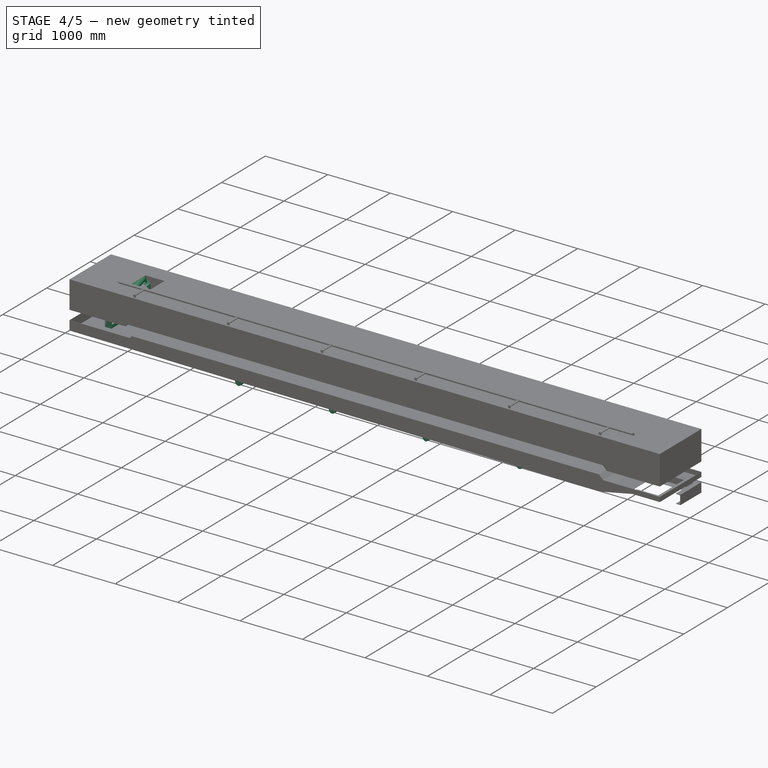
[diagram: stage 4 of 5 — iso view after this stage's code; geometry added in this stage tinted green]
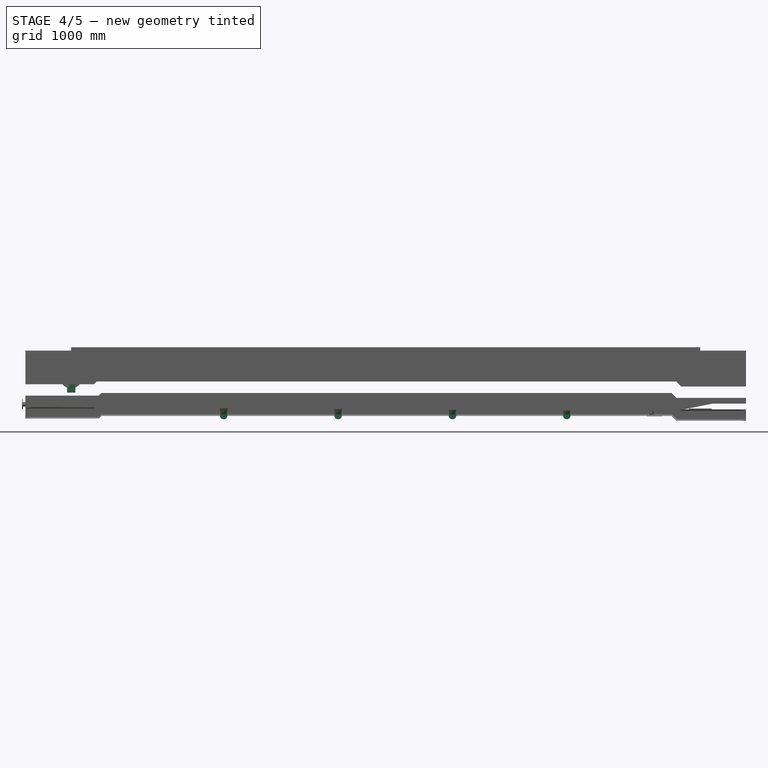
[diagram: stage 4 of 5 — front view after this stage's code; geometry added in this stage tinted green]
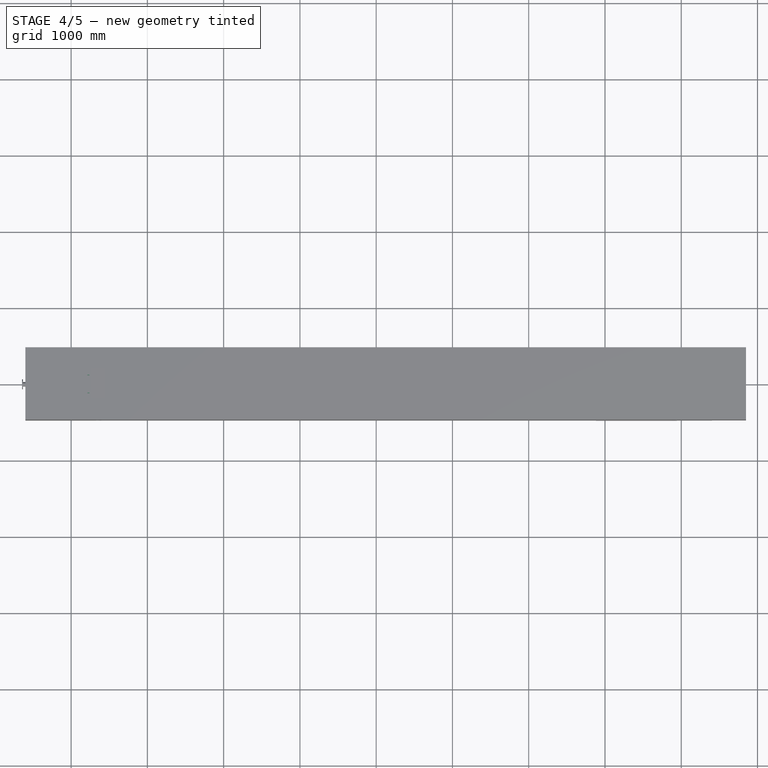
[diagram: stage 4 of 5 — top view after this stage's code; geometry added in this stage tinted green]
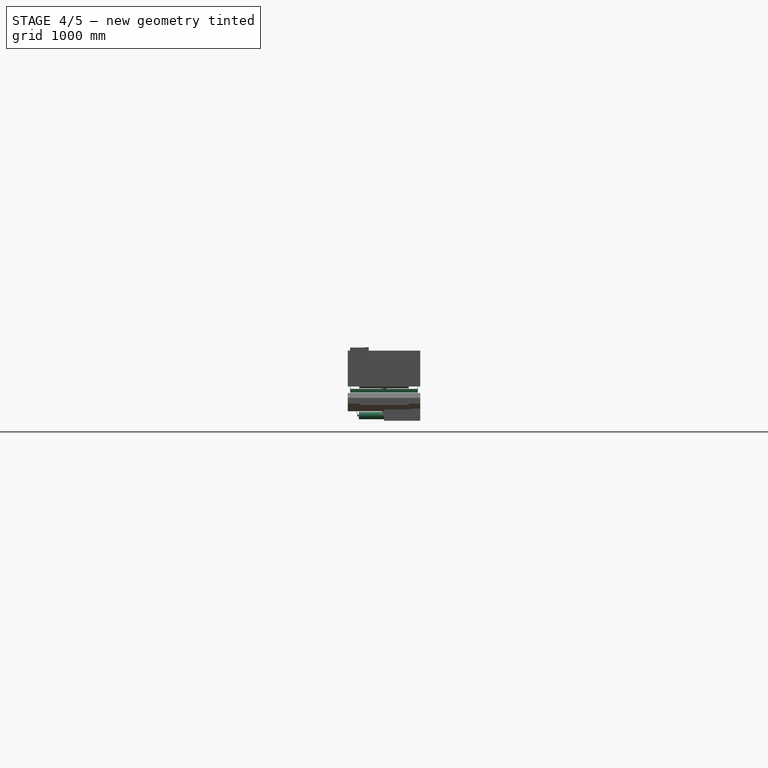
[diagram: stage 4 of 5 — right view after this stage's code; geometry added in this stage tinted green]
FEATURE [Part::FeaturePython] Carrier001  label="Self_Aligning_Carrier"  # WARN: FeaturePython — macro-defined, semantics opaque (R4)
  BeltWidth = 3
  Placement = pos=(0,0,0) rot=(0,0,1;-1.5708rad)
  count = 1
  mass = 170
  spec = 1
  spec2 = 0
FEATURE [App::Part] Part026  label="carrier_selfAligning"
  Group = -> [Carrier001]
  Origin = -> Origin028
  Placement = pos=(7750,0,-375) rot=(0,0.012499,0;0rad)
  expr: .Placement.Base.x = <<shtFrame>>.C0 - 500
  expr: .Placement.Base.z = -(1000 - <<shtFrame>>.Ht) + (<<shtFrame>>.C0 - 500) * sin(<<shtFrame>>.k) - <<shtFrame>>.za
  expr: .Placement.Rotation.Angle = -<<shtFrame>>.k
FEATURE [Part::FeaturePython] Return  # WARN: FeaturePython — macro-defined, semantics opaque (R4)
  BeltWidth = 3
  Placement = pos=(2000,0,0) rot=(0,0,1;1.5708rad)
  count = 4
  mass = 10
  spec = 0
  spec2 = 0
  expr: .Placement.Base.x = 2000
FEATURE [App::Part] Part027  label="return01"
  Group = -> [Return]
  Origin = -> Origin029
  Placement = pos=(0,0,-200) rot=(0,0,1;0rad)
  expr: .Placement.Base.z = -<<shtFrame>>.zr
FEATURE [Part::FeaturePython] Array002  label="returnArray"  # Draft array (typed FeaturePython)
  Angle = 360
  ArrayType = 0
  Axis = (0,0,1)
  Base = -> Part027
  Center = (0,0,0)
  Count = 4
  Fuse = true
  IntervalAxis = (0,0,0)
  IntervalX = (1500,0,0)
  IntervalY = (0,100,0)
  IntervalZ = (0,0,100)
  NumberCircles = 3
  NumberPolar = 5
  NumberX = 4
  NumberY = 1
  NumberZ = 1
  Placement = pos=(0,0,-300) rot=(0,1,0;0rad)
  RadialDistance = 50
  Symmetry = 1
  TangentialDistance = 25
  expr: .Placement.Base.z = -(1000 - <<shtFrame>>.Ht)
  expr: .Placement.Rotation.Angle = -<<shtFrame>>.k
  expr: NumberX = (<<shtFrame>>.C0 - 2600) / 1500
FEATURE [Part::FeaturePython] Return001  label="Self_Aligning_Return"  # WARN: FeaturePython — macro-defined, semantics opaque (R4)
  BeltWidth = 3
  Placement = pos=(0,0,0) rot=(0,0,1;-1.5708rad)
  count = 1
  mass = 30
  spec = 1
  spec2 = 0
FEATURE [Sketcher::SketchObject] Sketch030
  ArcFitTolerance = 1e-06
  AttachmentSupport = -> [XY_Plane033]
  FullyConstrained = true
  MakeInternals = false
  MapMode = 5
  expr: Constraints[15] = (<<shtScr>>.B0 + 100) / 2
  sketch-geometry (6):
    g0: LineSegment StartX=-451.035 StartY=350 StartZ=0 EndX=16.0601 EndY=22.9363 EndZ=0
    g1: ArcOfCircle CenterX=0 CenterY=0 CenterZ=0 NormalX=0 NormalY=0 NormalZ=1 AngleXU=0 Radius=28 StartAngle=0 EndAngle=0.959931
    g2: ArcOfCircle CenterX=0 CenterY=0 CenterZ=0 NormalX=0 NormalY=0 NormalZ=1 AngleXU=0 Radius=18 StartAngle=0 EndAngle=0.959931
    g3: LineSegment StartX=10.3244 StartY=14.7447 StartZ=0 EndX=-456.771 EndY=341.808 EndZ=0
    g4: LineSegment StartX=-456.771 StartY=341.808 StartZ=0 EndX=-451.035 EndY=350 EndZ=0
    g5: LineSegment StartX=18 StartY=0 StartZ=0 EndX=28 EndY=0 EndZ=0
  constraints (16):
    c: Tangent(g0,g1) = 1.5708
    c: Coincident(g3,g4)
    c: Coincident(g4,g0)
    c: Coincident(g2,g1)
    c: Coincident(g2,g-1)
    c: Tangent(g2,g3) = -1.5708
    c: Perpendicular(g4,g3)
    c: Parallel(g0,g3)
    c: Horizontal(g5)
    c: PointOnObject(g5,g-1)
    c: Coincident(g1,g5)
    c: Coincident(g2,g5)
    c: Angle(g3,g-1) = 0.610865
    c: DistanceX(g5,g5) = 10
    c: DistanceX(g-1,g2) = 18
    c: DistanceY(g-1,g0) = 350
FEATURE [PartDesign::Pad] Pad002
  Direction = (0,0,1)
  Length = 70
  Length2 = 10
  Profile = -> Sketch030
  ReferenceAxis = -> Sketch030 [N_Axis]
  Refine = true
  Suppressed = false
  Type = 0
FEATURE [Sketcher::SketchObject] Sketch031
  ArcFitTolerance = 1e-06
  FullyConstrained = false
  MakeInternals = false
  MapMode = 5
  Placement = pos=(0,126.75,0) rot=(0,0.707107,0.707107;3.14159rad)
  sketch-geometry (1):
    g0: Circle CenterX=26.7406 CenterY=25.2413 CenterZ=0 NormalX=0 NormalY=0 NormalZ=1 AngleXU=0 Radius=6
  constraints (2):
    c: Diameter(g0) = 12
    c: Distance(g0,g-3) = 25
FEATURE [PartDesign::Pocket] Pocket002
  BaseFeature = -> Pad002
  Direction = (-1e-16,-1,2e-16)
  Length = 30
  Length2 = 5
  Profile = -> Sketch031
  ReferenceAxis = -> Sketch031 [N_Axis]
  Refine = true
  Suppressed = false
  Type = 0
FEATURE [Sketcher::SketchObject] Sketch032
  ArcFitTolerance = 1e-06
  AttachmentSupport = -> [Pocket002]
  FullyConstrained = true
  MakeInternals = false
  MapMode = 5
  Placement = pos=(10.3244,14.7447,0) rot=(0.913318,-0.287968,-0.287968;1.66134rad)
  sketch-geometry (1):
    g0: Circle CenterX=-463.046 CenterY=45 CenterZ=0 NormalX=0 NormalY=0 NormalZ=1 AngleXU=0 Radius=6
  constraints (3):
    c: DistanceY(g-1,g0) = 45
    c: Diameter(g0) = 12
    c: Distance(g0,g-3) = 20
FEATURE [PartDesign::Pocket] Pocket003
  BaseFeature = -> Pocket002
  Direction = (0.573576,0.819152,0)
  Length = 5
  Length2 = 5
  Profile = -> Sketch032
  ReferenceAxis = -> Sketch032 [N_Axis]
  Refine = true
  Suppressed = false
  Type = 1
FEATURE [PartDesign::LinearPattern] LinearPattern001
  BaseFeature = -> Pocket003
  Direction = -> Sketch032 [H_Axis]
  Length = 390
  Mode = 0
  Occurrences = 4
  Offset = 130
  Originals = -> [Pocket003]
  Refine = true
  Reversed = true
  Suppressed = false
  TransformMode = 0
FEATURE [PartDesign::Mirrored] Mirrored001
  BaseFeature = -> LinearPattern001
  MirrorPlane = -> XZ_Plane033
  Refine = true
  Suppressed = false
  TransformMode = 1
FEATURE [PartDesign::Body] Body001
  AllowCompound = false
  Group = -> [Sketch030,Pad002,Sketch031,Pocket002,Sketch032,Pocket003,LinearPattern001,Mirrored001]
  Origin = -> Origin033
  Placement = pos=(0,0,-20) rot=(0,0,1;0rad)
  Tip = -> Mirrored001
FEATURE [App::Part] Part001  label="rubberSheet"
  Group = -> [Body001]
  Origin = -> Origin003
FEATURE [Sketcher::SketchObject] Sketch010
  ArcFitTolerance = 1e-06
  AttachmentSupport = -> [XZ_Plane034]
  FullyConstrained = true
  MakeInternals = false
  MapMode = 5
  Placement = pos=(0,0,0) rot=(1,0,0;1.5708rad)
  sketch-geometry (6):
    g0: LineSegment StartX=-4.29e-14 StartY=25 StartZ=0 EndX=215 EndY=25 EndZ=0
    g1: ArcOfCircle CenterX=215 CenterY=0 CenterZ=0 NormalX=0 NormalY=0 NormalZ=1 AngleXU=0 Radius=25 StartAngle=4.71239 EndAngle=7.85398
    g2: LineSegment StartX=215 StartY=-25 StartZ=0 EndX=2.84e-14 EndY=-25 EndZ=0
    g3: ArcOfCircle CenterX=0 CenterY=0 CenterZ=0 NormalX=0 NormalY=0 NormalZ=1 AngleXU=0 Radius=25 StartAngle=1.5708 EndAngle=4.71239
    g4: Circle CenterX=0 CenterY=0 CenterZ=0 NormalX=0 NormalY=0 NormalZ=1 AngleXU=0 Radius=7
    g5: Circle CenterX=215 CenterY=0 CenterZ=0 NormalX=0 NormalY=0 NormalZ=1 AngleXU=0 Radius=7
  constraints (13):
    c: PointOnObject(g0,g-2)
    c: Tangent(g0,g1) = 1.5708
    c: PointOnObject(g2,g-2)
    c: Tangent(g2,g3) = 1.5708
    c: Tangent(g1,g2) = 1.5708
    c: Tangent(g3,g0) = 1.5708
    c: Coincident(g3,g-1)
    c: DistanceX(g0,g0) = 215
    c: Distance(g0,g2) = 50
    c: Coincident(g4,g3)
    c: Coincident(g5,g1)
    c: Diameter(g4) = 14
    c: Diameter(g5) = 14
FEATURE [PartDesign::Pad] Pad004
  Direction = (0,-1,2e-16)
  Length = 6
  Length2 = 10
  Placement = pos=(0,0,0) rot=(1,0,0;1.5708rad)
  Profile = -> Sketch010
  ReferenceAxis = -> Sketch010 [N_Axis]
  Refine = true
  Suppressed = false
  Type = 0
FEATURE [PartDesign::Body] Body003
  AllowCompound = false
  Group = -> [Sketch010,Pad004]
  Origin = -> Origin034
  Placement = pos=(0,-114.25,0) rot=(0,0,1;0rad)
  Tip = -> Pad004
FEATURE [Part::Mirroring] Mirror003  label="Body003 (mirrored)"
  Base = (-500,0,0)
  Normal = (0,-1,0)
  Source = -> Body003
FEATURE [Part::MultiFuse] Fusion015  label="linkPlate"
  Refine = true
  Shapes = -> [Mirror003,Body003]
FEATURE [App::Part] Part004  label="LinkPlate"
  Group = -> [Mirror003,Body003,Fusion015]
  Origin = -> Origin008
  Placement = pos=(-27,0,25) rot=(0,1,0;-0.069824rad)
  expr: .Placement.Base.z = 25
  expr: .Placement.Rotation.Angle = -<<shtScr>>.sita
FEATURE [Sketcher::SketchObject] Sketch033
  ArcFitTolerance = 1e-06
  AttachmentSupport = -> [XZ_Plane009]
  FullyConstrained = true
  MakeInternals = false
  MapMode = 5
  Placement = pos=(0,0,0) rot=(1,0,0;1.5708rad)
  sketch-geometry (5):
    g0: Circle CenterX=0 CenterY=0 CenterZ=0 NormalX=0 NormalY=0 NormalZ=1 AngleXU=0 Radius=7
    g1: ArcOfCircle CenterX=0 CenterY=0 CenterZ=0 NormalX=0 NormalY=0 NormalZ=1 AngleXU=0 Radius=25 StartAngle=3.14159 EndAngle=6.28319
    g2: LineSegment StartX=-25 StartY=3.1e-15 StartZ=0 EndX=-25 EndY=30 EndZ=0
    g3: LineSegment StartX=-25 StartY=30 StartZ=0 EndX=25 EndY=30 EndZ=0
    g4: LineSegment StartX=25 StartY=30 StartZ=0 EndX=25 EndY=-7.1e-15 EndZ=0
  constraints (13):
    c: Coincident(g0,g-1)
    c: Coincident(g1,g0)
    c: PointOnObject(g1,g-1)
    c: PointOnObject(g1,g-1)
    c: Tangent(g1,g2) = 1.5708
    c: Coincident(g2,g3)
    c: Horizontal(g3)
    c: Coincident(g3,g4)
    c: Coincident(g4,g1)
    c: Vertical(g4)
    c: DistanceX(g3,g3) = 50
    c: DistanceY(g-1,g2) = 30
    c: Diameter(g0) = 14
FEATURE [PartDesign::Pad] Pad005
  Direction = (0,-1,2e-16)
  Length = 6
  Length2 = 10
  Midplane = true
  Placement = pos=(0,0,0) rot=(1,0,0;1.5708rad)
  Profile = -> Sketch033
  ReferenceAxis = -> Sketch033 [N_Axis]
  Refine = true
  Suppressed = false
  Type = 0
FEATURE [PartDesign::Body] Body004
  AllowCompound = false
  Group = -> [Sketch033,Pad005]
  Origin = -> Origin009
  Placement = pos=(0,7,0) rot=(0,0,1;0rad)
  Tip = -> Pad005
FEATURE [Part::FeaturePython] Clone001  label="Body005"  # Draft clone (typed FeaturePython)
  AttacherType = Attacher::AttachEngine3D
  Fuse = false
  Objects = -> [Body004]
  Placement = pos=(0,-7,0) rot=(0,0,1;0rad)
  Scale = (1,1,1)
FEATURE [Part::Compound] Compound001  label="Compound"
  Links = -> [Body004,Clone001]
  Placement = pos=(0,117.5,0) rot=(0,0,1;0rad)
FEATURE [Part::FeaturePython] Clone002  label="Compound001"  # Draft clone (typed FeaturePython)
  AttacherType = Attacher::AttachEngine3D
  Fuse = false
  Objects = -> [Compound001]
  Placement = pos=(0,-117.5,0) rot=(0,0,1;0rad)
  Scale = (1,1,1)
FEATURE [Part::FeaturePython] AngleSteel  # WARN: FeaturePython — macro-defined, semantics opaque (R4)
  A = 50
  B = 50
  L = 880
  Placement = pos=(0,-440,55) rot=(1,0,0;0rad)
  Solid = true
  g0 = 7.85
  mass = 3.89871
  size = 7
  standard = SS_Equal
  t = 6
  type = 00_Angle
  expr: .Placement.Base.y = -(Spreadsheet003.B0 + 280) / 2
  expr: L = Spreadsheet003.B0 + 280
FEATURE [Sketcher::SketchObject] Sketch034
  ArcFitTolerance = 1e-06
  AttachmentSupport = -> [AngleSteel]
  ExternalGeometry = -> [AngleSteel]
  FullyConstrained = true
  MakeInternals = false
  MapMode = 5
  Placement = pos=(0,-440,36) rot=(0,0,1;0rad)
  sketch-geometry (2):
    g0: Circle CenterX=5 CenterY=860 CenterZ=0 NormalX=0 NormalY=0 NormalZ=1 AngleXU=0 Radius=7.5
    g1: Circle CenterX=5 CenterY=20 CenterZ=0 NormalX=0 NormalY=0 NormalZ=1 AngleXU=0 Radius=7.5
  constraints (6):
    c: Diameter(g0) = 15
    c: Distance(g0,g-4) = 30
    c: Diameter(g1) = 15
    c: DistanceY(g-1,g1) = 20
    c: DistanceX(g-4,g1) = 30
    c: DistanceY(g0,g-3) = 20
FEATURE [Part::Extrusion] Extrude025
  Base = -> Sketch034
  Dir = (0,0,1)
  DirMode = 2
  FaceMakerClass = Part::FaceMakerBullseye
  FaceMakerMode = 3
  LengthFwd = 10
  LengthRev = 0
  Reversed = true
  Solid = true
  Symmetric = false
FEATURE [Part::Cut] Cut001
  Base = -> AngleSteel
  Refine = true
  Tool = -> Extrude025
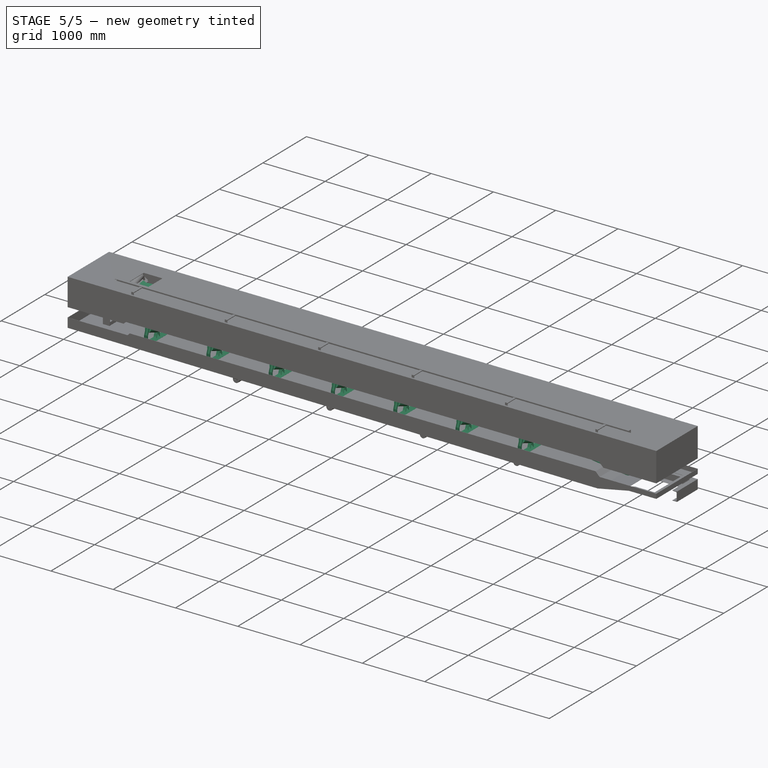
[diagram: stage 5 of 5 — iso view after this stage's code; geometry added in this stage tinted green]
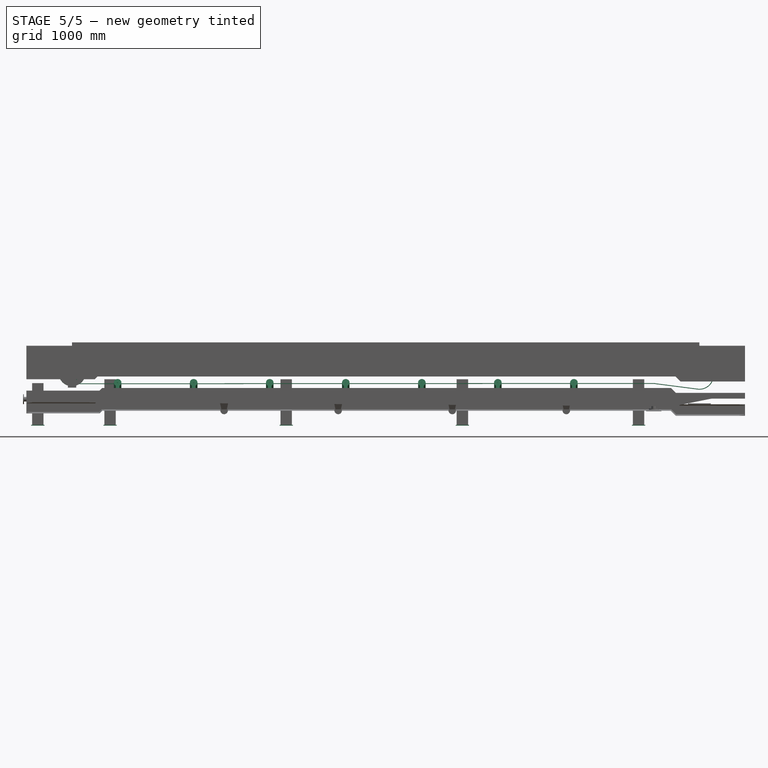
[diagram: stage 5 of 5 — front view after this stage's code; geometry added in this stage tinted green]
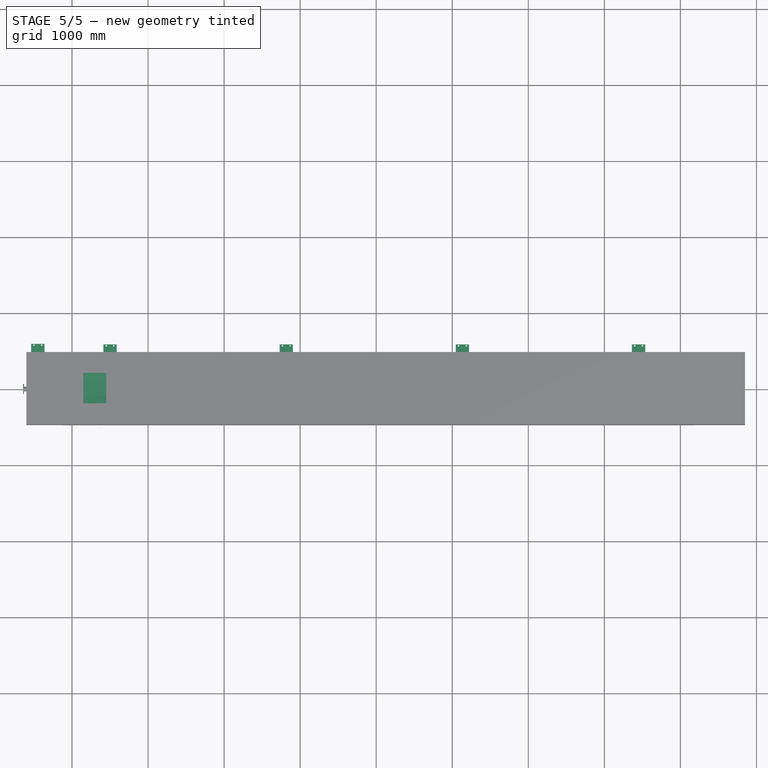
[diagram: stage 5 of 5 — top view after this stage's code; geometry added in this stage tinted green]
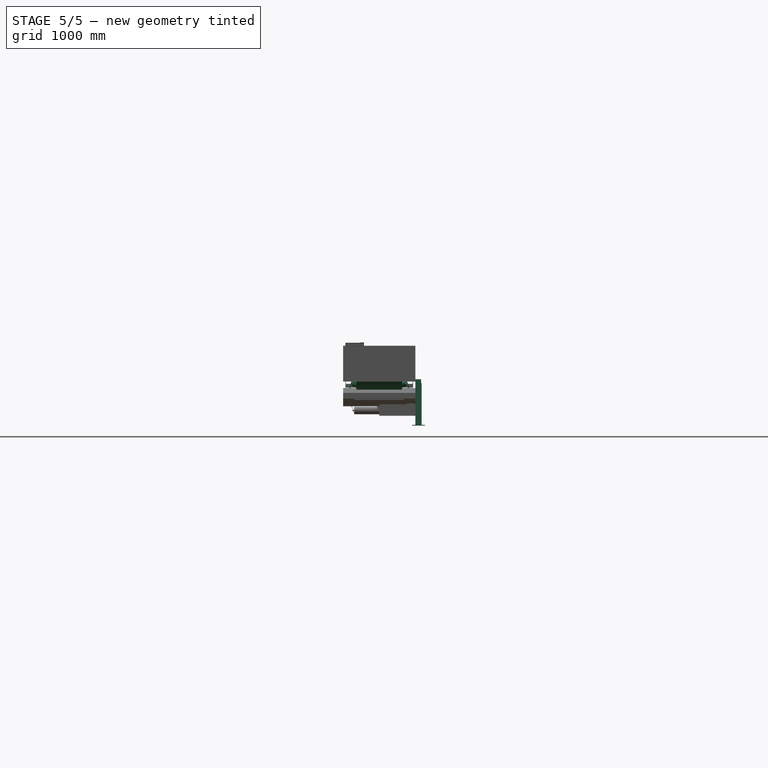
[diagram: stage 5 of 5 — right view after this stage's code; geometry added in this stage tinted green]
FEATURE [App::Part] Part012  label="frame"
  Group = -> [Sketch007]
  Origin = -> Origin016
FEATURE [Part::FeaturePython] BasePlate  # WARN: FeaturePython — macro-defined, semantics opaque (R4)
  B = 175
  D = 19
  H = 160
  b1 = 25
  h1 = 30
  sface = 0
FEATURE [Part::Extrusion] Extrude020
  Base = -> BasePlate
  Dir = (0,0,1)
  DirMode = 2
  FaceMakerClass = Part::FaceMakerBullseye
  FaceMakerMode = 3
  LengthFwd = 10
  LengthRev = 0
  Solid = true
  Symmetric = false
FEATURE [Part::FeaturePython] Channel  # WARN: FeaturePython — macro-defined, semantics opaque (R4)
  B = 75
  H = 150
  L = 560
  Placement = pos=(0,0,0) rot=(1,0,0;1.5708rad)
  Solid = true
  g0 = 7.85
  mass = 7.2443
  size = 3
  standard = SS
  expr: L = str(Spreadsheet.Ht - 140 - 450 * tan(Spreadsheet.k))
FEATURE [Part::MultiFuse] Fusion010  label="PostC"
  Placement = pos=(-450,-500,-700) rot=(0,0,-1;1.5708rad)
  Shapes = -> [Extrude020,Channel]
  expr: .Placement.Base.z = -Spreadsheet.Ht
FEATURE [Part::FeaturePython] BasePlate001  # WARN: FeaturePython — macro-defined, semantics opaque (R4)
  B = 175
  D = 19
  H = 160
  b1 = 25
  h1 = 30
  sface = 0
FEATURE [Part::FeaturePython] Channel001  # WARN: FeaturePython — macro-defined, semantics opaque (R4)
  B = 75
  H = 150
  L = 610
  Placement = pos=(0,0,0) rot=(1,0,0;1.5708rad)
  Solid = true
  g0 = 7.85
  mass = 17.7237
  size = 3
  standard = SS
  expr: L = str(Spreadsheet.Ht - 90 + (Spreadsheet.C0 - 1300 + 500) * tan(Spreadsheet.k))
FEATURE [Part::Extrusion] Extrude021
  Base = -> BasePlate001
  Dir = (0,0,1)
  DirMode = 2
  FaceMakerClass = Part::FaceMakerBullseye
  FaceMakerMode = 3
  LengthFwd = 10
  LengthRev = 0
  Solid = true
  Symmetric = false
FEATURE [Part::MultiFuse] Fusion011  label="PostC001"
  Placement = pos=(500,-492.5,-700) rot=(0,0,-1;1.5708rad)
  Shapes = -> [Extrude021,Channel001]
  expr: .Placement.Base.z = -Spreadsheet.Ht
FEATURE [Part::FeaturePython] BasePlate002  # WARN: FeaturePython — macro-defined, semantics opaque (R4)
  B = 175
  D = 19
  H = 160
  b1 = 25
  h1 = 30
  sface = 0
FEATURE [Part::FeaturePython] Channel002  # WARN: FeaturePython — macro-defined, semantics opaque (R4)
  B = 75
  H = 150
  L = 600
  Solid = true
  g0 = 7.85
  mass = 18.2639
  size = 3
  standard = SS
  expr: L = str(Spreadsheet.Ht - 100 + (Spreadsheet.C0 - 200) * tan(Spreadsheet.k))
FEATURE [Part::Extrusion] Extrude022
  Base = -> BasePlate002
  Dir = (0,0,1)
  DirMode = 2
  FaceMakerClass = Part::FaceMakerBullseye
  FaceMakerMode = 3
  LengthFwd = 10
  LengthRev = 0
  Solid = true
  Symmetric = false
FEATURE [Part::MultiFuse] Fusion012  label="ヘッド部"
  Placement = pos=(7450,-492.5,-700) rot=(0,0,-1;1.5708rad)
  Shapes = -> [Extrude022,Channel002]
  expr: .Placement.Base.x = Spreadsheet.C0 - 800
  expr: .Placement.Base.z = -Spreadsheet.Ht
FEATURE [Sketcher::SketchObject] Sketch026
  ArcFitTolerance = 0
  FullyConstrained = true
  MakeInternals = false
  Placement = pos=(0,0,0) rot=(1,0,0;1.5708rad)
  expr: Constraints[11] = -90 + 500 * tan(Spreadsheet.k)
  expr: Constraints[8] = 180 - Spreadsheet.k
  expr: Constraints[9] = Spreadsheet.C0 - 1000
  sketch-geometry (4):
    g0: LineSegment StartX=425 StartY=-90 StartZ=0 EndX=7675 EndY=-90 EndZ=0
    g1: LineSegment StartX=7675 StartY=-90 StartZ=0 EndX=7675 EndY=910 EndZ=0
    g2: LineSegment StartX=7675 StartY=910 StartZ=0 EndX=425 EndY=910 EndZ=0
    g3: LineSegment StartX=425 StartY=910 StartZ=0 EndX=425 EndY=-90 EndZ=0
  constraints (12):
    c: Coincident(g0,g1)
    c: Vertical(g1)
    c: Coincident(g1,g2)
    c: Horizontal(g2)
    c: Coincident(g2,g3)
    c: Coincident(g3,g0)
    c: Vertical(g3)
    c: DistanceX(g-1,g0) = 425
    c: Angle(g0,g-1) = 3.14159
    c: DistanceX(g2,g2) = 7250
    c: DistanceY(g1,g1) = 1000
    c: DistanceY(g-1,g0) = -90
FEATURE [Part::Extrusion] Extrude024
  Base = -> Sketch026
  Dir = (0,-1,2e-16)
  DirMode = 2
  FaceMakerClass = Part::FaceMakerBullseye
  FaceMakerMode = 3
  LengthFwd = 600
  LengthRev = 0
  Solid = true
  Symmetric = false
FEATURE [Part::FeaturePython] Array  # Draft array (typed FeaturePython)
  Angle = 360
  ArrayType = 0
  Axis = (0,0,1)
  Base = -> Fusion011
  Center = (0,0,0)
  Count = 3
  Fuse = true
  IntervalAxis = (0,0,0)
  IntervalX = (2316.67,0,0)
  IntervalY = (0,100,0)
  IntervalZ = (0,0,100)
  NumberCircles = 3
  NumberPolar = 5
  NumberX = 3
  NumberY = 1
  NumberZ = 1
  Placement = pos=(2316.67,0,0) rot=(0,0,1;0rad)
  RadialDistance = 50
  Symmetry = 1
  TangentialDistance = 25
  expr: .IntervalX.x = Spreadsheet.post_x
  expr: .Placement.Base.x = Spreadsheet.post_x
  expr: NumberX = Spreadsheet.post_c + 1
FEATURE [Part::MultiFuse] Fusion013
  Refine = true
  Shapes = -> [Array,Fusion011]
FEATURE [Part::Cut] Cut
  Base = -> Fusion013
  Refine = true
  Tool = -> Extrude024
FEATURE [App::Part] Part018  label="post"
  Group = -> [BasePlate,Channel,Extrude020,Fusion010,BasePlate002,Channel002,Extrude022,Fusion012,Array,Fusion013,Extrude021,Extrude024,Fusion011,Sketch026,Channel001,BasePlate001,Cut]
  Origin = -> Origin021
  Placement = pos=(0,-20,0) rot=(0,1,0;0rad)
  expr: .Placement.Base.y = -(Spreadsheet.B0 - 560) / 2
FEATURE [Part::Mirroring] Mirror001  label="post (mirrored)"
  Base = (-1500,0,0)
  Normal = (0,-1,0)
  Source = -> Part018
FEATURE [App::Part] Part019  label="Post"
  Group = -> [Part018,Mirror001]
  Origin = -> Origin022
  Placement = pos=(0,0,-300) rot=(0,0,1;0rad)
  expr: .Placement.Base.z = Spreadsheet.Ht - 1000
FEATURE [Part::FeaturePython] MotorPulley  # WARN: FeaturePython — macro-defined, semantics opaque (R4)
  BeltWidth = 3
  D = 360
  Placement = pos=(0,0,0) rot=(0,0,1;1.5708rad)
  Standard = CPM2_4145
  count = 1
  mass = 167
FEATURE [App::Part] Part021  label="motorPulley"
  Group = -> [MotorPulley]
  Origin = -> Origin023
  Placement = pos=(8250,0,-336) rot=(0,0.001434,0;0rad)
  expr: .Placement.Base.x = <<shtFrame>>.C0 * cos(<<shtFrame>>.k)
  expr: .Placement.Base.z = -(1000 + (<<shtFrame>>.D0 - <<shtFrame>>.d1) / 2 - <<shtFrame>>.Ht) + <<shtFrame>>.C0 * sin(<<shtFrame>>.k)
  expr: .Placement.Rotation.Angle = -<<shtFrame>>.k
FEATURE [Sketcher::SketchObject] Sketch027
  ArcFitTolerance = 0
  FullyConstrained = true
  MakeInternals = false
  Placement = pos=(0,0,0) rot=(0.57735,0.57735,0.57735;2.0944rad)
  expr: Constraints[1] = <<shtFrame>>.B0
  expr: Constraints[2] = Spreadsheet002.d1 / 2
  sketch-geometry (1):
    g0: LineSegment StartX=-300 StartY=144 StartZ=0 EndX=300 EndY=144 EndZ=0
  constraints (3):
    c: Symmetric(g0,g0,g-2)
    c: DistanceX(g0,g0) = 600
    c: Distance(g-1,g0) = 144
FEATURE [Sketcher::SketchObject] Sketch001
  ArcFitTolerance = 0
  FullyConstrained = true
  MakeInternals = false
  Placement = pos=(8250,0,0) rot=(0.57735,0.57735,0.57735;2.0944rad)
  expr: .Placement.Base.x = Spreadsheet002.C0
  expr: Constraints[1] = <<shtFrame>>.B0
  expr: Constraints[2] = <<shtFrame>>.d1 / 2
  sketch-geometry (1):
    g0: LineSegment StartX=-300 StartY=144 StartZ=0 EndX=300 EndY=144 EndZ=0
  constraints (3):
    c: Symmetric(g0,g0,g-2)
    c: DistanceX(g0,g0) = 600
    c: Distance(g-1,g0) = 144
FEATURE [Sketcher::SketchObject] Sketch002
  ArcFitTolerance = 0
  FullyConstrained = true
  MakeInternals = false
  Placement = pos=(1000,0,0) rot=(0.57735,0.57735,0.57735;2.0944rad)
  expr: Constraints[5] = <<shtFrame>>.b2
  expr: Constraints[6] = <<shtFrame>>.b2
  expr: Constraints[7] = <<shtFrame>>.d1 / 2
  expr: Constraints[8] = <<shtFrame>>.b1
  sketch-geometry (3):
    g0: LineSegment StartX=-288.24 StartY=210.694 StartZ=0 EndX=-105 EndY=144 EndZ=0
    g1: LineSegment StartX=-105 StartY=144 StartZ=0 EndX=105 EndY=144 EndZ=0
    g2: LineSegment StartX=105 StartY=144 StartZ=0 EndX=288.24 EndY=210.694 EndZ=0
  constraints (9):
    c: Coincident(g0,g1)
    c: Coincident(g1,g2)
    c: Angle(g2,g1) = 2.79253
    c: Angle(g1,g0) = 2.79253
    c: Symmetric(g1,g0,g-2)
    c: Distance(g2) = 195
    c: Distance(g0) = 195
    c: DistanceY(g-1,g1) = 144
    c: DistanceX(g1,g1) = 210
FEATURE [Sketcher::SketchObject] Sketch003
  ArcFitTolerance = 0
  FullyConstrained = true
  MakeInternals = false
  Placement = pos=(7250,0,0) rot=(0.57735,0.57735,0.57735;2.0944rad)
  expr: .Placement.Base.x = Spreadsheet002.C0 - 1000
  expr: Constraints[5] = <<shtFrame>>.b2
  expr: Constraints[6] = <<shtFrame>>.b2
  expr: Constraints[7] = <<shtFrame>>.d1 / 2
  expr: Constraints[8] = <<shtFrame>>.b1
  sketch-geometry (3):
    g0: LineSegment StartX=-288.24 StartY=210.694 StartZ=0 EndX=-105 EndY=144 EndZ=0
    g1: LineSegment StartX=-105 StartY=144 StartZ=0 EndX=105 EndY=144 EndZ=0
    g2: LineSegment StartX=105 StartY=144 StartZ=0 EndX=288.24 EndY=210.694 EndZ=0
  constraints (9):
    c: Coincident(g0,g1)
    c: Coincident(g1,g2)
    c: Angle(g2,g1) = 2.79253
    c: Angle(g1,g0) = 2.79253
    c: Symmetric(g1,g0,g-2)
    c: Distance(g2) = 195
    c: Distance(g0) = 195
    c: DistanceY(g-1,g1) = 144
    c: DistanceX(g1,g1) = 210
FEATURE [Sketcher::SketchObject] Sketch004
  ArcFitTolerance = 0
  FullyConstrained = false
  MakeInternals = false
  Placement = pos=(8250,0,0) rot=(1,0,0;1.5708rad)
  expr: .Placement.Base.x = Spreadsheet002.C0
  expr: Constraints[0] = Spreadsheet002.d1
  expr: Constraints[12] = Spreadsheet002.D0 / 2
  expr: Constraints[2] = Spreadsheet002.C0
  sketch-geometry (5):
    g0: ArcOfCircle CenterX=-8248.62 CenterY=0 CenterZ=0 NormalX=0 NormalY=0 NormalZ=1 AngleXU=0 Radius=144 StartAngle=1.58036 EndAngle=4.70282
    g1: LineSegment StartX=-8250 StartY=143.993 StartZ=0 EndX=0 EndY=222.903 EndZ=0
    g2: LineSegment StartX=0.030512 StartY=-137.097 StartZ=0 EndX=-600 EndY=-137.199 EndZ=0
    g3: LineSegment StartX=-600 StartY=-137.199 StartZ=0 EndX=-8250 EndY=-143.993 EndZ=0
    g4: ArcOfCircle CenterX=0 CenterY=42.9025 CenterZ=0 NormalX=0 NormalY=0 NormalZ=1 AngleXU=0 Radius=180 StartAngle=4.71256 EndAngle=7.85398
  constraints (14):
    c: Diameter(g0) = 288
    c: Coincident(g0,g3)
    c: DistanceX(g0,g1) = 8250
    c: Vertical(g0,g0)
    c: PointOnObject(g0,g-1)
    c: Coincident(g2,g3)
    c: DistanceX(g2,g-1) = 600
    c: Tangent(g1,g0) = 1.5708
    c: PointOnObject(g4,g-2)
    c: PointOnObject(g4,g-2)
    c: Tangent(g4,g2) = 1.5708
    c: Coincident(g1,g4)
    c: Radius(g4) = 180
    c: Distance(g4,g-1) = 42.9025
FEATURE [Sketcher::SketchObject] Sketch005
  ArcFitTolerance = 0
  FullyConstrained = true
  MakeInternals = false
  Placement = pos=(8250,0,0) rot=(1,0,0;1.5708rad)
  expr: .Placement.Base.x = Spreadsheet002.C0
  expr: Constraints[0] = Spreadsheet002.d1
  expr: Constraints[15] = (Spreadsheet002.D0 - Spreadsheet002.d1) / 2
  expr: Constraints[23] = <<shtFrame>>.D0 / 2
  expr: Constraints[24] = Spreadsheet002.C0
  expr: Constraints[27] = <<shtFrame>>.zb - 10
  expr: Constraints[28] = <<shtFrame>>.C0 - 600
  expr: Constraints[5] = Spreadsheet002.t0
  sketch-geometry (10):
    g0: ArcOfCircle CenterX=-8250 CenterY=0 CenterZ=0 NormalX=0 NormalY=0 NormalZ=1 AngleXU=0 Radius=144 StartAngle=1.5708 EndAngle=4.71239
    g1: LineSegment StartX=-23.0822 StartY=-214.514 StartZ=0 EndX=-599.359 EndY=-140 EndZ=0
    g2: LineSegment StartX=-599.359 StartY=-140 StartZ=0 EndX=-8250 EndY=-144 EndZ=0
    g3: ArcOfCircle CenterX=-8250 CenterY=0 CenterZ=0 NormalX=0 NormalY=0 NormalZ=1 AngleXU=0 Radius=154 StartAngle=1.5708 EndAngle=4.71291
    g4: LineSegment StartX=-8249.92 StartY=-154 StartZ=0 EndX=-600 EndY=-150 EndZ=0
    g5: LineSegment StartX=-600 StartY=-150 StartZ=0 EndX=-24.3646 EndY=-224.431 EndZ=0
    g6: LineSegment StartX=-8250 StartY=144 StartZ=0 EndX=-8250 EndY=154 EndZ=0
    g7: ArcOfCircle CenterX=0 CenterY=-36 CenterZ=0 NormalX=0 NormalY=0 NormalZ=1 AngleXU=0 Radius=180 StartAngle=4.5838 EndAngle=7.85398
    g8: ArcOfCircle CenterX=0 CenterY=-36 CenterZ=0 NormalX=0 NormalY=0 NormalZ=1 AngleXU=0 Radius=190 StartAngle=4.5838 EndAngle=7.85398
    g9: LineSegment StartX=5.82e-14 StartY=154 StartZ=0 EndX=5.51e-14 EndY=144 EndZ=0
  constraints (29):
    c: Diameter(g0) = 288
    c: Coincident(g0,g2)
    c: Vertical(g0,g0)
    c: Coincident(g3,g0)
    c: Tangent(g3,g4) = -1.5708
    c: DistanceY(g3,g0) = 10
    c: Vertical(g0,g3)
    c: Coincident(g6,g0)
    c: Coincident(g6,g3)
    c: Vertical(g0,g0)
    c: Parallel(g5,g1)
    c: Coincident(g5,g4)
    c: PointOnObject(g0,g-1)
    c: PointOnObject(g7,g-2)
    c: PointOnObject(g7,g-2)
    c: Distance(g7,g-1) = 36
    c: Coincident(g8,g7)
    c: PointOnObject(g8,g-2)
    c: Coincident(g9,g8)
    c: Coincident(g9,g7)
    c: DistanceY(g9,g9) = 10
    c: Tangent(g7,g1) = 1.5708
    c: Tangent(g8,g5) = -1.5708
    c: Radius(g7) = 180
    c: DistanceX(g0,g-1) = 8250
    c: Coincident(g1,g2)
    c: Parallel(g4,g2)
    c: DistanceY(g1,g-1) = 140
    c: DistanceX(g0,g4) = 7650
FEATURE [Sketcher::SketchObject] Sketch006
  ArcFitTolerance = 0
  FullyConstrained = true
  MakeInternals = false
  Placement = pos=(4125,0,0) rot=(0.57735,0.57735,0.57735;2.0944rad)
  expr: .Placement.Base.x = Spreadsheet002.C0 / 2
  expr: Constraints[5] = <<shtFrame>>.b2
  expr: Constraints[6] = <<shtFrame>>.b2
  expr: Constraints[7] = <<shtFrame>>.d1 / 2
  expr: Constraints[8] = <<shtFrame>>.b1
  sketch-geometry (3):
    g0: LineSegment StartX=-288.24 StartY=210.694 StartZ=0 EndX=-105 EndY=144 EndZ=0
    g1: LineSegment StartX=-105 StartY=144 StartZ=0 EndX=105 EndY=144 EndZ=0
    g2: LineSegment StartX=105 StartY=144 StartZ=0 EndX=288.24 EndY=210.694 EndZ=0
  constraints (9):
    c: Coincident(g0,g1)
    c: Coincident(g1,g2)
    c: Angle(g2,g1) = 2.79253
    c: Angle(g1,g0) = 2.79253
    c: Symmetric(g1,g0,g-2)
    c: Distance(g2) = 195
    c: Distance(g0) = 195
    c: DistanceY(g-1,g1) = 144
    c: DistanceX(g1,g1) = 210
FEATURE [Part::Extrusion] Extrude
  Base = -> Sketch005
  Dir = (0,-1,2e-16)
  DirMode = 2
  FaceMakerClass = Part::FaceMakerBullseye
  FaceMakerMode = 3
  LengthFwd = 600
  LengthRev = 0
  Solid = true
  Symmetric = true
  expr: LengthFwd = <<shtFrame>>.B0
FEATURE [Spreadsheet::Sheet] Spreadsheet002  label="Spreadsheet"
  cells = A2='CenterDistance C0; B2(C0)==<<shtFrame>>.C0; A3='BeltWidth B0; B3(B0)=600; C3=400; D3=450; E3=500; F3=600; G3=700; H3=750; I3=800; J3=900; K3=1000; A4='Belt b1; B4(b1)=210; C4=145; D4=165; E4=180; F4=210; G4=250; H4=265; I4=280; J4=315; K4=345; A5='Belt b2; B5(b2)=195; C5==(C3 - C4) / 2; D5==(D3 - D4) / 2; E5==(E3 - E4) / 2; F5==(F3 - F4) / 2; G5==(G3 - G4) / 2; H5==(H3 - H4) / 2; I5==(I3 - I4) / 2; J5==(J3 - J4) / 2; K5==(K3 - K4) / 2; A6='BeltThickness t0; B6(t0)=10; C6=10; D6=10; E6=10; F6=10; G6=10; H6=10; I6=10; J6=10; K6=10; A7='HeadPullyDia D0; B7(D0)==<<shtFrame>>.D0; C7=300; D7=300; E7=360; F7=360; G7=360; H7=460; I7=460; J7=520; K7=520; A8='TailPullyDia d1; B8(d1)==D0 * 0.8; C8=260; D8=260; E8=300; F8=300; G8=300; H8=390; I8=390; J8=440; K8=440; A9='SnapPullyDia d2; B9(d2)=200; C9=200; D9=200; E9=200; F9=200; G9=200; H9=200; I9=200; J9=200; K9=200; A10='SnapPully Ls; B10(Ls)=500; C10=500; D10=500; E10=500; F10=500; G10=500; H10=500; I10=500; J10=500; K10=500; A11='SnapPully h0; B11(h0)=180; C11=180; D11=180; E11=180; F11=180; G11=180; H11=180; I11=180; J11=180; K11=180
FEATURE [Part::Sweep] Sweep
  Frenet = false
  Sections = -> [Sketch027,Sketch002,Sketch003,Sketch001,Sketch006]
  Solid = false
  Spine = -> Sketch004 [Edge2]
  Transition = 1
FEATURE [Part::Extrusion] Extrude002
  Base = -> Sweep
  Dir = (0,0,1)
  DirMode = 0
  FaceMakerClass = Part::FaceMakerBullseye
  FaceMakerMode = 3
  LengthFwd = 10
  LengthRev = 0
  Solid = false
  Symmetric = false
FEATURE [App::Part] Part023  label="Belt"
  Group = -> [Spreadsheet002,Extrude002,Sketch027,Sketch001,Sketch002,Sweep,Sketch003,Sketch004,Sketch005,Sketch006,Extrude]
  JPN = コンベヤベルト
  Origin = -> Origin025
  Placement = pos=(0,0,-300) rot=(0,1,0;0rad)
  Standard = B=600,L=8250
  count = 1
  g0 = 1
  mass = 103.43
  material = Neoprene rubber
  expr: .Placement.Base.z = -(1000 - <<shtFrame>>.Ht)
  expr: .Placement.Rotation.Angle = -<<shtFrame>>.k
FEATURE [Part::FeaturePython] Carrier  # WARN: FeaturePython — macro-defined, semantics opaque (R4)
  BeltWidth = 3
  Placement = pos=(0,0,0) rot=(0,0,1;1.5708rad)
  count = 7
  mass = 35
  spec = 0
  spec2 = 0
FEATURE [App::Part] Part025  label="carrier"
  Group = -> [Carrier]
  Origin = -> Origin027
  Placement = pos=(600,0,2) rot=(0,1,0;0rad)
  expr: .Placement.Base.z = -<<shtFrame>>.z
FEATURE [Part::FeaturePython] Array001  label="carrierArray"  # Draft array (typed FeaturePython)
  Angle = 360
  ArrayType = 0
  Axis = (0,0,1)
  Base = -> Part025
  Center = (0,0,0)
  Count = 7
  Fuse = true
  IntervalAxis = (0,0,0)
  IntervalX = (1000,0,0)
  IntervalY = (0,100,0)
  IntervalZ = (0,0,100)
  NumberCircles = 3
  NumberPolar = 5
  NumberX = 7
  NumberY = 1
  NumberZ = 1
  Placement = pos=(0,0,-300) rot=(0,1,0;0rad)
  RadialDistance = 50
  Symmetry = 1
  TangentialDistance = 25
  expr: .Placement.Base.z = -(1000 - <<shtFrame>>.Ht)
  expr: .Placement.Rotation.Angle = -<<shtFrame>>.k
  expr: NumberX = (<<shtFrame>>.C0 - 500) / 1000 - 1
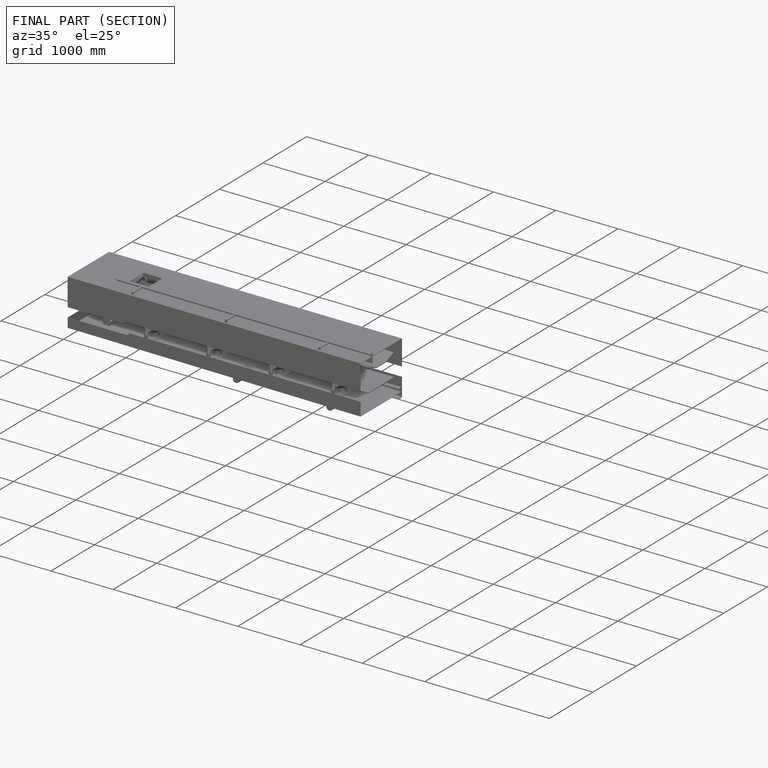
[diagram: finished part — half-section view (interior)]
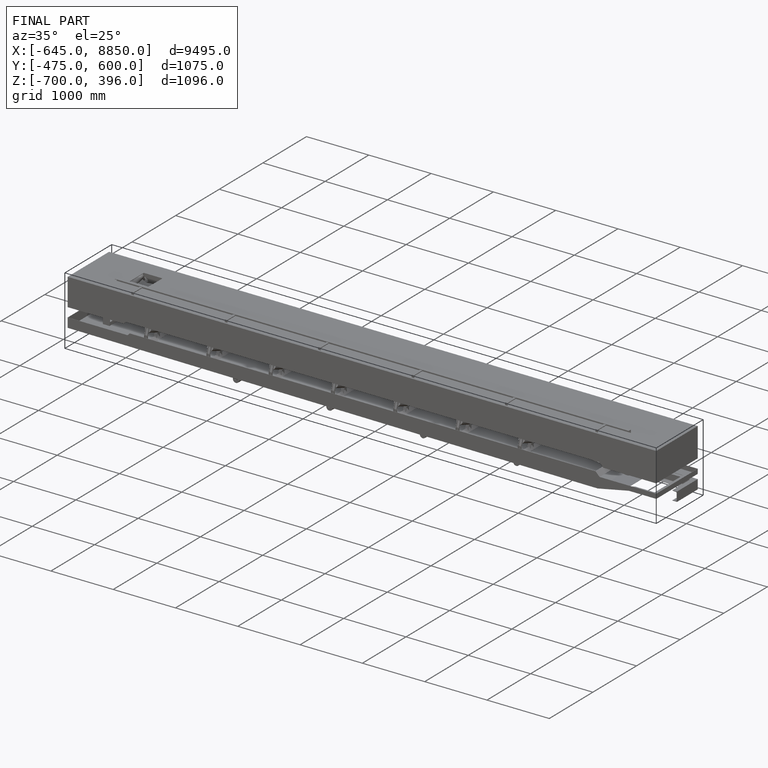
[diagram: finished part — iso view with bounding-box wireframe]
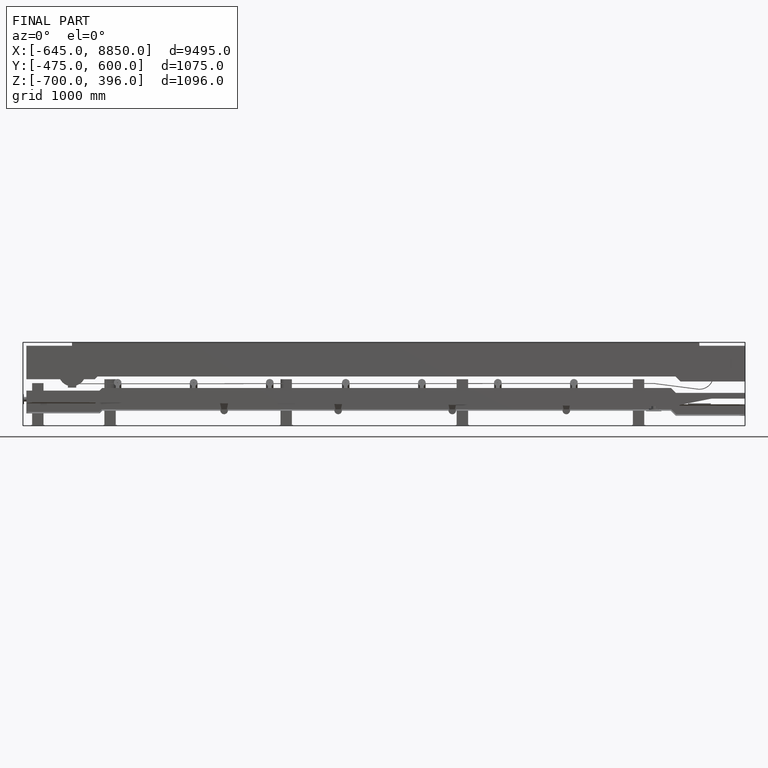
[diagram: finished part — front view with bounding-box wireframe]
